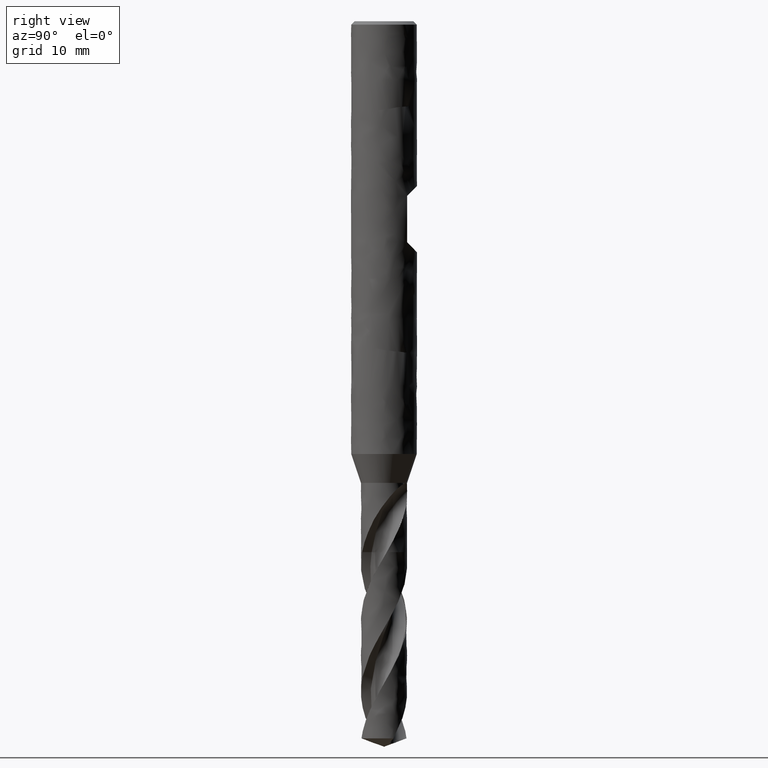
[diagram: clean part render]
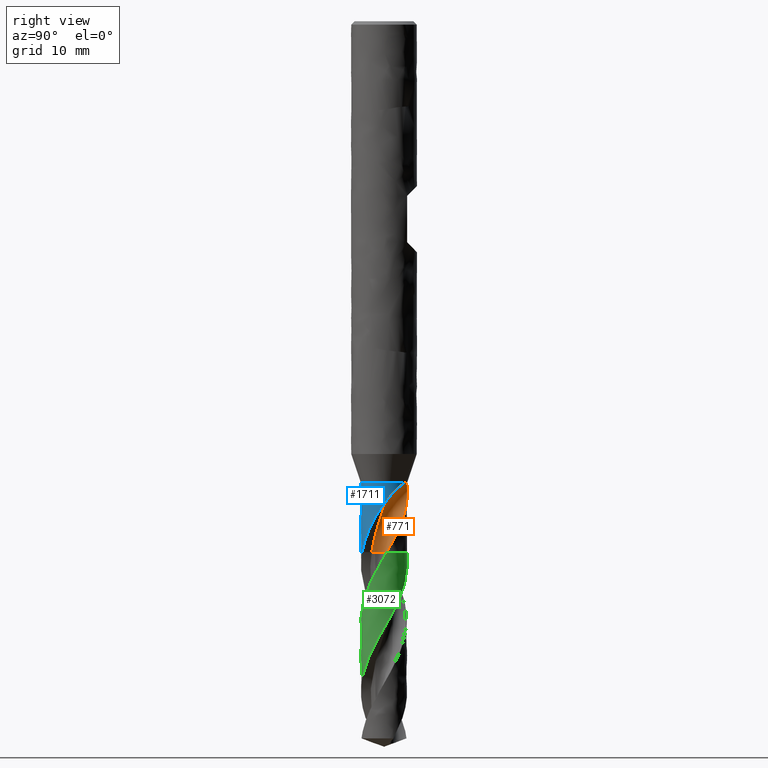
[diagram: same view with three faces highlighted in distinct colors, each labeled with its STEP entity id]
A machine part, right view with three faces highlighted in distinct colors.
Their STEP definitions:

[orange] entity #771 — the highlighted face is a freeform B-spline surface patch.
#195 = VERTEX_POINT('', #196);
#196 = CARTESIAN_POINT('', (0.864045133811133, 1.91400783873455, -42.));
#203 = EDGE_CURVE('', #204, #195, #206, .T.);
#204 = VERTEX_POINT('', #205);
#205 = CARTESIAN_POINT('', (0.722813576291031, 1.97896984860118, -41.98));
#206 = B_SPLINE_CURVE_WITH_KNOTS('', 3, (#207, #208, #209, #210, #211, #212, #213, #214, #215, #216), .UNSPECIFIED., .F., .U., (4, 3, 3, 4), (0., 0.0881396208913765, 0.14655030433623, 0.157114428138972), .UNSPECIFIED.);
#207 = CARTESIAN_POINT('', (0.722813576299619, 1.97896984859805, -41.98));
#208 = CARTESIAN_POINT('', (0.750404405804281, 1.96887427369636, -41.9800496909525));
#209 = CARTESIAN_POINT('', (0.777564282523738, 1.95738300211154, -41.9825461931863));
#210 = CARTESIAN_POINT('', (0.803830741102255, 1.94493931706285, -41.9868362783479));
#211 = CARTESIAN_POINT('', (0.821237689098298, 1.93669280838813, -41.9896793448802));
#212 = CARTESIAN_POINT('', (0.83832161795045, 1.92799829475506, -41.9933203244043));
#213 = CARTESIAN_POINT('', (0.855020471906068, 1.91895162431172, -41.9976093571186));
#214 = CARTESIAN_POINT('', (0.858040617368286, 1.91731544851425, -41.9983850691959));
#215 = CARTESIAN_POINT('', (0.861048920434352, 1.9156673570035, -41.9991822080975));
#216 = CARTESIAN_POINT('', (0.864045133811122, 1.91400783873456, -42.));
#218 = EDGE_CURVE('', #219, #204, #221, .T.);
#219 = VERTEX_POINT('', #220);
#220 = CARTESIAN_POINT('', (0.721136271945863, 1.9795816742502, -41.98));
#221 = LINE('', #222, #223);
#222 = CARTESIAN_POINT('', (0.721136271945863, 1.9795816742502, -41.98));
#223 = VECTOR('', #224, 0.00178540765404388);
#224 = DIRECTION('', (0.00167730434516777, -0.000611825649020847, 0.));
#226 = EDGE_CURVE('', #219, #227, #229, .T.);
#227 = VERTEX_POINT('', #228);
#228 = CARTESIAN_POINT('', (0.593214891550843, 2.01447166583259, -42.));
#229 = B_SPLINE_CURVE_WITH_KNOTS('', 3, (#230, #231, #232, #233, #234, #235, #236), .UNSPECIFIED., .F., .U., (4, 3, 4), (0., 0.0878009510418324, 0.134603453082699), .UNSPECIFIED.);
#230 = CARTESIAN_POINT('', (0.721136271941431, 1.97958167425182, -41.98));
#231 = CARTESIAN_POINT('', (0.693631342865468, 1.98958331164283, -41.9800495962315));
#232 = CARTESIAN_POINT('', (0.665423836561771, 1.9982766249651, -41.9825700610231));
#233 = CARTESIAN_POINT('', (0.637533563877114, 2.00511722989849, -41.9882176399275));
#234 = CARTESIAN_POINT('', (0.622666588875647, 2.00876363033671, -41.9912280950543));
#235 = CARTESIAN_POINT('', (0.60781558325175, 2.01190514273543, -41.9951400840576));
#236 = CARTESIAN_POINT('', (0.593214891550846, 2.01447166583259, -42.));
#608 = VERTEX_POINT('', #609);
#609 = CARTESIAN_POINT('', (0.556126910256113, -1.12758972511931, -48.3));
#615 = EDGE_CURVE('', #608, #616, #618, .T.);
#616 = VERTEX_POINT('', #617);
#617 = CARTESIAN_POINT('', (2.02664878262755, 0.550176982319562, -43.2346225348622));
#618 = B_SPLINE_CURVE_WITH_KNOTS('', 3, (#619, #620, #621, #622, #623, #624, #625, #626, #627, #628, #629, #630, #631, #632, #633, #634, #635), .UNSPECIFIED., .F., .U., (4, 1, 1, 1, 1, 1, 1, 1, 1, 1, 1, 1, 1, 1, 4), (17.75, 17.8583870967742, 18.2466129032258, 18.6348387096774, 19.023064516129, 19.4112903225806, 19.7995161290323, 20.1877419354839, 20.5759677419355, 20.9641935483871, 21.3524193548387, 21.7406451612903, 22.1288709677419, 22.5170967741936, 22.8153774651378), .UNSPECIFIED.);
#619 = CARTESIAN_POINT('', (0.556126910256113, -1.12758972511931, -48.3));
#620 = CARTESIAN_POINT('', (0.567345727047188, -1.12240556657259, -48.2638709677419));
#621 = CARTESIAN_POINT('', (0.61842465869541, -1.09789667359361, -48.0983333333333));
#622 = CARTESIAN_POINT('', (0.706621828589804, -1.0481382453941, -47.8033870967742));
#623 = CARTESIAN_POINT('', (0.815231089446162, -0.970396712026822, -47.4151612903226));
#624 = CARTESIAN_POINT('', (0.916635421108995, -0.882497024634898, -47.026935483871));
#625 = CARTESIAN_POINT('', (1.00296425888489, -0.779322485067304, -46.6387096774194));
#626 = CARTESIAN_POINT('', (1.07051011495178, -0.6634137166897, -46.2504838709677));
#627 = CARTESIAN_POINT('', (1.11679331438377, -0.537716355560253, -45.8622580645161));
#628 = CARTESIAN_POINT('', (1.14307846790871, -0.409469959020646, -45.4740322580645));
#629 = CARTESIAN_POINT('', (1.21314661255275, -0.29704825930208, -45.0858064516129));
#630 = CARTESIAN_POINT('', (1.31918576703887, -0.180037182633004, -44.6975806451613));
#631 = CARTESIAN_POINT('', (1.46405191380302, -0.0454577551452909, -44.3093548387097));
#632 = CARTESIAN_POINT('', (1.64366578165144, 0.121712562769068, -43.9211290322581));
#633 = CARTESIAN_POINT('', (1.8356789791346, 0.318773264205345, -43.5628849309756));
#634 = CARTESIAN_POINT('', (1.96816567126978, 0.475460011853656, -43.3340494318436));
#635 = CARTESIAN_POINT('', (2.02664878262755, 0.550176982319563, -43.2346225348622));
#771 = ADVANCED_FACE('', (#772), #1028, .T.);
#772 = FACE_OUTER_BOUND('', #773, .T.);
#773 = EDGE_LOOP('', (#774, #840, #876, #887, #978, #979, #980, #981, #1027));
#774 = ORIENTED_EDGE('', *, *, #775, .T.);
#775 = EDGE_CURVE('', #608, #776, #778, .T.);
#776 = VERTEX_POINT('', #777);
#777 = CARTESIAN_POINT('', (2.08549341092007, 0.246408670726007, -48.3));
#778 = B_SPLINE_CURVE_WITH_KNOTS('', 3, (#779, #780, #781, #782, #783, #784, #785, #786, #787, #788, #789, #790, #791, #792, #793, #794, #795, #796, #797, #798, #799, #800, #801, #802, #803, #804, #805, #806, #807, #808, #809, #810, #811, #812, #813, #814, #815, #816, #817, #818, #819, #820, #821, #822, #823, #824, #825, #826, #827, #828, #829, #830, #831, #832, #833, #834, #835, #836, #837, #838, #839), .UNSPECIFIED., .F., .U., (4, 3, 3, 3, 3, 3, 3, 3, 3, 3, 3, 3, 3, 3, 3, 3, 3, 3, 3, 3, 4), (0., 0.13221393521754, 0.26423610894369, 0.396071642208949, 0.527724457489775, 0.659197375737823, 0.790492185102751, 0.921609684937988, 1.05254970736411, 1.18331111755208, 1.20922921835682, 1.34144286074896, 1.4734647503101, 1.60530000617978, 1.73695254911299, 1.86842519846345, 1.99971974086683, 2.13083697421148, 2.26177672916909, 2.39253786944637, 2.40342313004446), .UNSPECIFIED.);
#779 = CARTESIAN_POINT('', (0.556126910256111, -1.12758972511931, -48.3));
#780 = CARTESIAN_POINT('', (0.551058379935698, -1.08381084300929, -48.3));
#781 = CARTESIAN_POINT('', (0.548286006554261, -1.03970519155441, -48.3));
#782 = CARTESIAN_POINT('', (0.547832635129783, -0.99563621184347, -48.3));
#783 = CARTESIAN_POINT('', (0.547379921269731, -0.951631149247312, -48.3));
#784 = CARTESIAN_POINT('', (0.549238228141942, -0.907542044937356, -48.3));
#785 = CARTESIAN_POINT('', (0.55339228715043, -0.863731152710823, -48.3));
#786 = CARTESIAN_POINT('', (0.557540473543235, -0.819982196179533, -48.3));
#787 = CARTESIAN_POINT('', (0.563989244777734, -0.77639109883157, -48.3));
#788 = CARTESIAN_POINT('', (0.572685764558104, -0.733315012755468, -48.3));
#789 = CARTESIAN_POINT('', (0.581370231362115, -0.69029862815309, -48.3));
#790 = CARTESIAN_POINT('', (0.592319871981882, -0.647678588360261, -48.3));
#791 = CARTESIAN_POINT('', (0.605445221439055, -0.605803124069619, -48.3));
#792 = CARTESIAN_POINT('', (0.618552635758142, -0.563984880520942, -48.3));
#793 = CARTESIAN_POINT('', (0.633865425813752, -0.522795514594197, -48.3));
#794 = CARTESIAN_POINT('', (0.651258818136696, -0.482570650304446, -48.3));
#795 = CARTESIAN_POINT('', (0.668628647297572, -0.442400279409593, -48.3));
#796 = CARTESIAN_POINT('', (0.688120512084066, -0.403082907132266, -48.3));
#797 = CARTESIAN_POINT('', (0.709576015765095, -0.364938038215183, -48.3));
#798 = CARTESIAN_POINT('', (0.731002544460095, -0.326844682749398, -48.3));
#799 = CARTESIAN_POINT('', (0.754445319103286, -0.289817681146443, -48.3));
#800 = CARTESIAN_POINT('', (0.779714349834722, -0.254157115412651, -48.3));
#801 = CARTESIAN_POINT('', (0.804949177030317, -0.218544818939805, -48.3));
#802 = CARTESIAN_POINT('', (0.832073338609477, -0.184199242209075, -48.3));
#803 = CARTESIAN_POINT('', (0.860867602739123, -0.151397984353718, -48.3));
#804 = CARTESIAN_POINT('', (0.889622589282995, -0.118641469931049, -48.3));
#805 = CARTESIAN_POINT('', (0.920120424878073, -0.0873369821821816, -48.3));
#806 = CARTESIAN_POINT('', (0.952115280548496, -0.0577368521336566, -48.3));
#807 = CARTESIAN_POINT('', (0.958456951943038, -0.0518698371379619, -48.3));
#808 = CARTESIAN_POINT('', (0.964859304351878, -0.046067739663427, -48.3));
#809 = CARTESIAN_POINT('', (0.971320306390285, -0.0403324006415595, -48.3));
#810 = CARTESIAN_POINT('', (1.00427922646844, -0.0110752390868731, -48.3));
#811 = CARTESIAN_POINT('', (1.03882256718141, 0.0164882051525758, -48.3));
#812 = CARTESIAN_POINT('', (1.07466568442013, 0.0421308037253902, -48.3));
#813 = CARTESIAN_POINT('', (1.11045681746813, 0.0677362121808962, -48.3));
#814 = CARTESIAN_POINT('', (1.14764204336895, 0.0914965356064935, -48.3));
#815 = CARTESIAN_POINT('', (1.18591583467709, 0.113216550476045, -48.3));
#816 = CARTESIAN_POINT('', (1.22413551996553, 0.13490586069073, -48.3));
#817 = CARTESIAN_POINT('', (1.26354513961639, 0.154619918654095, -48.3));
#818 = CARTESIAN_POINT('', (1.30382180272504, 0.17219720314198, -48.3));
#819 = CARTESIAN_POINT('', (1.34404264565616, 0.189750126943927, -48.3));
#820 = CARTESIAN_POINT('', (1.38523774049331, 0.205220050276381, -48.3));
#821 = CARTESIAN_POINT('', (1.42707050056864, 0.218480575325064, -48.3));
#822 = CARTESIAN_POINT('', (1.46884609923319, 0.231722980834943, -48.3));
#823 = CARTESIAN_POINT('', (1.51137115946979, 0.242798030029448, -48.3));
#824 = CARTESIAN_POINT('', (1.55429917501708, 0.251615480264139, -48.3));
#825 = CARTESIAN_POINT('', (1.59716903567185, 0.260420985435351, -48.3));
#826 = CARTESIAN_POINT('', (1.64055695877341, 0.266998888652003, -48.3));
#827 = CARTESIAN_POINT('', (1.68411036249484, 0.271295736119403, -48.3));
#828 = CARTESIAN_POINT('', (1.72760494874466, 0.27558678083243, -48.3));
#829 = CARTESIAN_POINT('', (1.77138214442973, 0.27761454302465, -48.3));
#830 = CARTESIAN_POINT('', (1.81508716264177, 0.277362588946308, -48.3));
#831 = CARTESIAN_POINT('', (1.8587330223745, 0.277110975909356, -48.3));
#832 = CARTESIAN_POINT('', (1.90242456767089, 0.274585152296672, -48.3));
#833 = CARTESIAN_POINT('', (1.94580866177188, 0.269805533068592, -48.3));
#834 = CARTESIAN_POINT('', (1.98913357570942, 0.265032433710362, -48.3));
#835 = CARTESIAN_POINT('', (2.03226836372527, 0.257998866746774, -48.3));
#836 = CARTESIAN_POINT('', (2.07486533763539, 0.248761526281056, -48.3));
#837 = CARTESIAN_POINT('', (2.07841133884583, 0.247992560378882, -48.3));
#838 = CARTESIAN_POINT('', (2.08195409583425, 0.247208259662032, -48.3));
#839 = CARTESIAN_POINT('', (2.08549341057053, 0.246408669178801, -48.3));
#840 = ORIENTED_EDGE('', *, *, #841, .F.);
#841 = EDGE_CURVE('', #842, #776, #844, .T.);
#842 = VERTEX_POINT('', #843);
#843 = CARTESIAN_POINT('', (1.58851665766254, 1.3735409816706, -46.1026083026161));
#844 = B_SPLINE_CURVE_WITH_KNOTS('', 3, (#845, #846, #847, #848, #849, #850, #851, #852, #853, #854, #855, #856, #857, #858, #859, #860, #861, #862, #863, #864, #865, #866, #867, #868, #869, #870, #871, #872, #873, #874, #875), .UNSPECIFIED., .F., .U., (4, 3, 3, 3, 3, 3, 3, 3, 3, 3, 4), (0., 0.197020074080752, 0.492447114262048, 0.787846746858852, 1.08318671605039, 1.2801296973638, 1.47707240520879, 1.67399144802539, 1.96923136988726, 2.41172800126813, 2.52809866126606), .UNSPECIFIED.);
#845 = CARTESIAN_POINT('', (1.58851665766254, 1.3735409816706, -46.1026083026161));
#846 = CARTESIAN_POINT('', (1.60900028755248, 1.34985141745389, -46.1603336472082));
#847 = CARTESIAN_POINT('', (1.62905290531876, 1.32558872609442, -46.217981351933));
#848 = CARTESIAN_POINT('', (1.64862924182809, 1.30077731491192, -46.2755500142288));
#849 = CARTESIAN_POINT('', (1.67798350524276, 1.26357317821383, -46.3618728906597));
#850 = CARTESIAN_POINT('', (1.70627412362569, 1.22512510888603, -46.4480376265066));
#851 = CARTESIAN_POINT('', (1.73336523400838, 1.18551464163504, -46.5340291504247));
#852 = CARTESIAN_POINT('', (1.76045383107376, 1.14590784915678, -46.620012696671));
#853 = CARTESIAN_POINT('', (1.78635496033678, 1.1051206661048, -46.7058435649217));
#854 = CARTESIAN_POINT('', (1.81092950219745, 1.06326588305602, -46.7915169525912));
#855 = CARTESIAN_POINT('', (1.83549908060967, 1.02141955363618, -46.8771730363594));
#856 = CARTESIAN_POINT('', (1.85874700766502, 0.97849776833109, -46.9627002249396));
#857 = CARTESIAN_POINT('', (1.88054317279829, 0.934642913225972, -47.0481017648846));
#858 = CARTESIAN_POINT('', (1.8950776151032, 0.905398967907252, -47.1050504871708));
#859 = CARTESIAN_POINT('', (1.90897003958032, 0.875733496832032, -47.161951815285));
#860 = CARTESIAN_POINT('', (1.92217882080112, 0.845711878161606, -47.2188187286181));
#861 = CARTESIAN_POINT('', (1.93538758368065, 0.815690301178196, -47.2756855629876));
#862 = CARTESIAN_POINT('', (1.9479140634062, 0.7853083293546, -47.3325258121565));
#863 = CARTESIAN_POINT('', (1.95971504264421, 0.754663469126473, -47.3893697457221));
#864 = CARTESIAN_POINT('', (1.97151460385303, 0.724022291245843, -47.4462068488074));
#865 = CARTESIAN_POINT('', (1.98258685658696, 0.693126517217477, -47.5030628794218));
#866 = CARTESIAN_POINT('', (1.9929228608244, 0.66201092951968, -47.5599272349741));
#867 = CARTESIAN_POINT('', (2.00841959003746, 0.615359455141247, -47.6451837325167));
#868 = CARTESIAN_POINT('', (2.02226682190873, 0.568199590884774, -47.7304792789873));
#869 = CARTESIAN_POINT('', (2.03444672691324, 0.52060207006119, -47.8157512261725));
#870 = CARTESIAN_POINT('', (2.05270159875118, 0.44926435091503, -47.9435542317511));
#871 = CARTESIAN_POINT('', (2.06721348963778, 0.376900298708733, -48.0713776247991));
#872 = CARTESIAN_POINT('', (2.07787696243854, 0.304018632598729, -48.1991683593872));
#873 = CARTESIAN_POINT('', (2.08068131230177, 0.284851735077943, -48.2327756030836));
#874 = CARTESIAN_POINT('', (2.08322078511933, 0.265643164865221, -48.2663912128339));
#875 = CARTESIAN_POINT('', (2.08549341092007, 0.246408670726007, -48.3));
#876 = ORIENTED_EDGE('', *, *, #877, .T.);
#877 = EDGE_CURVE('', #842, #878, #880, .T.);
#878 = VERTEX_POINT('', #879);
#879 = CARTESIAN_POINT('', (1.17143250964958, 1.7429130429646, -45.1242170224339));
#880 = B_SPLINE_CURVE_WITH_KNOTS('', 3, (#881, #882, #883, #884, #885, #886), .UNSPECIFIED., .F., .U., (4, 1, 1, 4), (19.9473916973839, 20.1877419354839, 20.5759677419355, 20.9257829775661), .UNSPECIFIED.);
#881 = CARTESIAN_POINT('', (1.58851665766254, 1.3735409816706, -46.1026083026161));
#882 = CARTESIAN_POINT('', (1.55370323535106, 1.40398821527374, -46.0224915565828));
#883 = CARTESIAN_POINT('', (1.45883494480509, 1.47878240850095, -45.8129662083989));
#884 = CARTESIAN_POINT('', (1.30073754531762, 1.57464758199835, -45.4868357816715));
#885 = CARTESIAN_POINT('', (1.21147889431098, 1.68333052923856, -45.2408221009774));
#886 = CARTESIAN_POINT('', (1.17143250964958, 1.7429130429646, -45.1242170224339));
#887 = ORIENTED_EDGE('', *, *, #888, .T.);
#888 = EDGE_CURVE('', #878, #227, #889, .T.);
#889 = B_SPLINE_CURVE_WITH_KNOTS('', 3, (#890, #891, #892, #893, #894, #895, #896, #897, #898, #899, #900, #901, #902, #903, #904, #905, #906, #907, #908, #909, #910, #911, #912, #913, #914, #915, #916, #917, #918, #919, #920, #921, #922, #923, #924, #925, #926, #927, #928, #929, #930, #931, #932, #933, #934, #935, #936, #937, #938, #939, #940, #941, #942, #943, #944, #945, #946, #947, #948, #949, #950, #951, #952, #953, #954, #955, #956, #957, #958, #959, #960, #961, #962, #963, #964, #965, #966, #967, #968, #969, #970, #971, #972, #973, #974, #975, #976, #977), .UNSPECIFIED., .F., .U., (4, 3, 3, 3, 3, 3, 3, 3, 3, 3, 3, 3, 3, 3, 3, 3, 3, 3, 3, 3, 3, 3, 3, 3, 3, 3, 3, 3, 3, 4), (0., 0.131329015450739, 0.328235767124203, 0.52498632031234, 0.721558249487562, 0.917953668431398, 1.11417691027165, 1.31022659134217, 1.5061270301777, 1.70190546546189, 1.89761367435583, 2.09331740471476, 2.28912007235003, 2.42001970183956, 2.55104167735566, 2.68225447785873, 2.81375695656608, 2.87222225946047, 2.91119753431028, 2.99921762331742, 3.0874764193496, 3.17601365135534, 3.26483834928556, 3.32383592607838, 3.38286952818586, 3.44190730165871, 3.50091591771368, 3.55986704842897, 3.61874168749781, 3.68743265222417), .UNSPECIFIED.);
#890 = CARTESIAN_POINT('', (1.17143250964958, 1.7429130429646, -45.1242170224339));
#891 = CARTESIAN_POINT('', (1.15153134468082, 1.75628885176837, -45.0875919056046));
#892 = CARTESIAN_POINT('', (1.13122403988719, 1.76944194707991, -45.0511032435581));
#893 = CARTESIAN_POINT('', (1.11056271560855, 1.78231603670622, -45.0147200701619));
#894 = CARTESIAN_POINT('', (1.07958438050859, 1.80161866499723, -44.9601693491013));
#895 = CARTESIAN_POINT('', (1.04780235713066, 1.82029631375677, -44.9058450220963));
#896 = CARTESIAN_POINT('', (1.01542182737691, 1.83818348172497, -44.8516271247959));
#897 = CARTESIAN_POINT('', (0.983066983840923, 1.85605646049692, -44.7974522364495));
#898 = CARTESIAN_POINT('', (0.950107202399082, 1.87314402912876, -44.7433707983378));
#899 = CARTESIAN_POINT('', (0.916779766012478, 1.88931597691601, -44.6892510432901));
#900 = CARTESIAN_POINT('', (0.883482586620485, 1.90547324266978, -44.6351804219687));
#901 = CARTESIAN_POINT('', (0.849813794462639, 1.92071874090488, -44.5810568063512));
#902 = CARTESIAN_POINT('', (0.816034701606613, 1.93496443527363, -44.5267482015085));
#903 = CARTESIAN_POINT('', (0.782285940423686, 1.94919733783218, -44.4724883626542));
#904 = CARTESIAN_POINT('', (0.74841864351225, 1.96243613265467, -44.418030803196));
#905 = CARTESIAN_POINT('', (0.714697973326569, 1.97464093113772, -44.3632617991395));
#906 = CARTESIAN_POINT('', (0.68100686557852, 1.98683502984547, -44.3085408102991));
#907 = CARTESIAN_POINT('', (0.647449973195208, 1.9980013069212, -44.2534954291715));
#908 = CARTESIAN_POINT('', (0.614314764873857, 2.00813778652215, -44.1980203613026));
#909 = CARTESIAN_POINT('', (0.58120886486587, 2.0182653003391, -44.1425943615023));
#910 = CARTESIAN_POINT('', (0.548513722170591, 2.02736810991886, -44.0867201475354));
#911 = CARTESIAN_POINT('', (0.516531119014513, 2.03548412007794, -44.0303122395811));
#912 = CARTESIAN_POINT('', (0.484572862519698, 2.04359395194849, -43.9739472719786));
#913 = CARTESIAN_POINT('', (0.453311209388773, 2.05072231222038, -43.917026434594));
#914 = CARTESIAN_POINT('', (0.423072618240329, 2.05694179783855, -43.8594846696923));
#915 = CARTESIAN_POINT('', (0.392852859186033, 2.063157410064, -43.8019787408496));
#916 = CARTESIAN_POINT('', (0.363639876924424, 2.06846849470192, -43.74382050321));
#917 = CARTESIAN_POINT('', (0.335791635327752, 2.07297949281799, -43.6849738732243));
#918 = CARTESIAN_POINT('', (0.307953382990007, 2.0774888728237, -43.6261483517249));
#919 = CARTESIAN_POINT('', (0.281456979351602, 2.0812024683295, -43.5665930859296));
#920 = CARTESIAN_POINT('', (0.256709160678005, 2.08425056239023, -43.5063104236258));
#921 = CARTESIAN_POINT('', (0.231961908326961, 2.08729858669919, -43.4460291408145));
#922 = CARTESIAN_POINT('', (0.208939472493387, 2.08968434949716, -43.3849596546758));
#923 = CARTESIAN_POINT('', (0.188133672308556, 2.0915558135856, -43.3231602508815));
#924 = CARTESIAN_POINT('', (0.167317353830596, 2.09342822378559, -43.2613296046338));
#925 = CARTESIAN_POINT('', (0.14868665729245, 2.09478964537231, -43.1986804929324));
#926 = CARTESIAN_POINT('', (0.132863441102062, 2.09579276313726, -43.1353679867864));
#927 = CARTESIAN_POINT('', (0.122285172880953, 2.09646337577678, -43.0930417830801));
#928 = CARTESIAN_POINT('', (0.11295297188498, 2.09697482089381, -43.0503750141928));
#929 = CARTESIAN_POINT('', (0.105103221367981, 2.09736818724278, -43.0074555118682));
#930 = CARTESIAN_POINT('', (0.09724613404041, 2.09776192125368, -42.9644958946052));
#931 = CARTESIAN_POINT('', (0.0908636640080462, 2.09803839772199, -42.9212291226679));
#932 = CARTESIAN_POINT('', (0.0862497954827468, 2.09822805547424, -42.8777999411157));
#933 = CARTESIAN_POINT('', (0.0816292071579807, 2.09841798945066, -42.8343075077848));
#934 = CARTESIAN_POINT('', (0.0787736236616184, 2.09852215384442, -42.7905752693677));
#935 = CARTESIAN_POINT('', (0.0780572086415792, 2.09854880147665, -42.7468435450951));
#936 = CARTESIAN_POINT('', (0.0773392119937131, 2.09857550793881, -42.7030152743933));
#937 = CARTESIAN_POINT('', (0.0787696688016285, 2.09852607724468, -42.6590743199777));
#938 = CARTESIAN_POINT('', (0.0828109758432458, 2.09836658910685, -42.6154271442837));
#939 = CARTESIAN_POINT('', (0.0846077194681566, 2.09829568152869, -42.5960218420223));
#940 = CARTESIAN_POINT('', (0.0869230549119642, 2.09820225120147, -42.5766562521121));
#941 = CARTESIAN_POINT('', (0.0898021582056481, 2.09807901957527, -42.5573820556416));
#942 = CARTESIAN_POINT('', (0.0917214819179532, 2.09799686851706, -42.5445331167367));
#943 = CARTESIAN_POINT('', (0.0938922623603598, 2.09790137746362, -42.5317189740304));
#944 = CARTESIAN_POINT('', (0.0963282391232028, 2.09778952002994, -42.5189581241992));
#945 = CARTESIAN_POINT('', (0.101829544561356, 2.09753690599947, -42.4901395682741));
#946 = CARTESIAN_POINT('', (0.108695211736345, 2.09720191393546, -42.4615382949671));
#947 = CARTESIAN_POINT('', (0.11707958296755, 2.09673373875944, -42.4334256559582));
#948 = CARTESIAN_POINT('', (0.125486692284299, 2.09626429391074, -42.4052367765763));
#949 = CARTESIAN_POINT('', (0.135449707216449, 2.09565968382111, -42.3774538117624));
#950 = CARTESIAN_POINT('', (0.147088681336955, 2.09484245704124, -42.3504467903022));
#951 = CARTESIAN_POINT('', (0.158764373713729, 2.09402265210096, -42.3233545679708));
#952 = CARTESIAN_POINT('', (0.172179102174249, 2.09298510051245, -42.2969361961158));
#953 = CARTESIAN_POINT('', (0.18735886842544, 2.09162536187109, -42.271663519351));
#954 = CARTESIAN_POINT('', (0.202587920897127, 2.09026120838055, -42.2463087863346));
#955 = CARTESIAN_POINT('', (0.219678086042879, 2.0885640555328, -42.2219819049096));
#956 = CARTESIAN_POINT('', (0.238483802527351, 2.08641450242566, -42.199214123085));
#957 = CARTESIAN_POINT('', (0.250974604390906, 2.08498676411116, -42.1840917079471));
#958 = CARTESIAN_POINT('', (0.264259250271184, 2.08335452123948, -42.1696063672838));
#959 = CARTESIAN_POINT('', (0.278242054310572, 2.08148537328828, -42.1559047803457));
#960 = CARTESIAN_POINT('', (0.292233396580558, 2.07961508399116, -42.1421948268947));
#961 = CARTESIAN_POINT('', (0.306964617855969, 2.07750176155894, -42.1292302004114));
#962 = CARTESIAN_POINT('', (0.322299962208184, 2.07511993252453, -42.1171317472769));
#963 = CARTESIAN_POINT('', (0.337636390169092, 2.07273793518802, -42.1050324392552));
#964 = CARTESIAN_POINT('', (0.353622289217629, 2.07008001889432, -42.0937635296146));
#965 = CARTESIAN_POINT('', (0.370093820243297, 2.06713099832063, -42.0834066414796));
#966 = CARTESIAN_POINT('', (0.386557216353217, 2.06418343420135, -42.0730548683769));
#967 = CARTESIAN_POINT('', (0.403552737225843, 2.06093641948619, -42.0635838366765));
#968 = CARTESIAN_POINT('', (0.420905927576344, 2.05738625448194, -42.0550308333922));
#969 = CARTESIAN_POINT('', (0.43824221269997, 2.05383954799705, -42.0464861623198));
#970 = CARTESIAN_POINT('', (0.455981364833001, 2.04998082833755, -42.0388339637557));
#971 = CARTESIAN_POINT('', (0.473955303636378, 2.04581679779862, -42.0320711473249));
#972 = CARTESIAN_POINT('', (0.491905920475353, 2.04165817026973, -42.0253171059416));
#973 = CARTESIAN_POINT('', (0.510133257781588, 2.03718524327581, -42.0194330050642));
#974 = CARTESIAN_POINT('', (0.528487493638463, 2.03241259813744, -42.0143852543447));
#975 = CARTESIAN_POINT('', (0.549901980211357, 2.02684419714109, -42.0084958786798));
#976 = CARTESIAN_POINT('', (0.571543748375582, 2.02085331173337, -42.0037293725524));
#977 = CARTESIAN_POINT('', (0.593214891550843, 2.01447166583259, -42.));
#978 = ORIENTED_EDGE('', *, *, #226, .F.);
#979 = ORIENTED_EDGE('', *, *, #218, .T.);
#980 = ORIENTED_EDGE('', *, *, #203, .T.);
#981 = ORIENTED_EDGE('', *, *, #982, .F.);
#982 = EDGE_CURVE('', #616, #195, #983, .T.);
#983 = B_SPLINE_CURVE_WITH_KNOTS('', 3, (#984, #985, #986, #987, #988, #989, #990, #991, #992, #993, #994, #995, #996, #997, #998, #999, #1000, #1001, #1002, #1003, #1004, #1005, #1006, #1007, #1008, #1009, #1010, #1011, #1012, #1013, #1014, #1015, #1016, #1017, #1018, #1019, #1020, #1021, #1022, #1023, #1024, #1025, #1026), .UNSPECIFIED., .F., .U., (4, 3, 3, 3, 3, 3, 3, 3, 3, 3, 3, 3, 3, 3, 4), (0., 0.199375078037429, 0.398900874019301, 0.598550882905467, 0.798299058307535, 0.998108113251841, 1.19794941761203, 1.39778853267809, 1.59757823524363, 1.73008181625885, 1.86251849738647, 1.99485612344929, 2.12704923017909, 2.21487958074265, 2.26732508271062), .UNSPECIFIED.);
#984 = CARTESIAN_POINT('', (2.02664878262755, 0.550176982319562, -43.2346225348622));
#985 = CARTESIAN_POINT('', (2.01541803670317, 0.591546901976506, -43.1838375605047));
#986 = CARTESIAN_POINT('', (2.00263927563071, 0.633604606966067, -43.1339161358273));
#987 = CARTESIAN_POINT('', (1.98817244136824, 0.676143729826623, -43.0849483172153));
#988 = CARTESIAN_POINT('', (1.97369467087671, 0.718715010212677, -43.0359434812939));
#989 = CARTESIAN_POINT('', (1.95751353202819, 0.761804914872326, -42.9878474378582));
#990 = CARTESIAN_POINT('', (1.93950518919256, 0.805182973674386, -42.9407577649067));
#991 = CARTESIAN_POINT('', (1.92148563543278, 0.848588037078231, -42.893638776723));
#992 = CARTESIAN_POINT('', (1.90161831960046, 0.892325297746152, -42.8474797006639));
#993 = CARTESIAN_POINT('', (1.87979457873621, 0.93614760681954, -42.8023994116629));
#994 = CARTESIAN_POINT('', (1.8579601072909, 0.979991463016438, -42.7572969569984));
#995 = CARTESIAN_POINT('', (1.83414150091983, 1.02397143523059, -42.7132247963892));
#996 = CARTESIAN_POINT('', (1.80825103959655, 1.06781467390086, -42.670321256656));
#997 = CARTESIAN_POINT('', (1.78235268734045, 1.11167127517779, -42.6274046407189));
#998 = CARTESIAN_POINT('', (1.75434813436788, 1.15544671179121, -42.5856005227466));
#999 = CARTESIAN_POINT('', (1.72416977184868, 1.19884886363681, -42.5450853194339));
#1000 = CARTESIAN_POINT('', (1.69398653850637, 1.24225802064063, -42.5045635769199));
#1001 = CARTESIAN_POINT('', (1.66158371518004, 1.28535820527008, -42.4652703043852));
#1002 = CARTESIAN_POINT('', (1.62691555894323, 1.32783499128034, -42.4274386285495));
#1003 = CARTESIAN_POINT('', (1.59224778250172, 1.37031131195047, -42.3896073671661));
#1004 = CARTESIAN_POINT('', (1.5552537035025, 1.41223831636632, -42.3531704156336));
#1005 = CARTESIAN_POINT('', (1.51591630644644, 1.45327139648787, -42.3184407106605));
#1006 = CARTESIAN_POINT('', (1.47658863601047, 1.49429433071235, -42.283719593003));
#1007 = CARTESIAN_POINT('', (1.43483493504125, 1.53451003339315, -42.2506296034303));
#1008 = CARTESIAN_POINT('', (1.39068122129481, 1.57353288517844, -42.2196010777381));
#1009 = CARTESIAN_POINT('', (1.36139780422478, 1.5994134362608, -42.1990224857735));
#1010 = CARTESIAN_POINT('', (1.33101924908361, 1.62480481185289, -42.1793237426499));
#1011 = CARTESIAN_POINT('', (1.29957001780911, 1.6495810888864, -42.1606721519543));
#1012 = CARTESIAN_POINT('', (1.26813666497368, 1.67434485659649, -42.1420299782821));
#1013 = CARTESIAN_POINT('', (1.23559047041345, 1.69852773444682, -42.1244078774728));
#1014 = CARTESIAN_POINT('', (1.20197791644856, 1.72198986302765, -42.1080202223838));
#1015 = CARTESIAN_POINT('', (1.16839050275208, 1.74543444327786, -42.0916448243239));
#1016 = CARTESIAN_POINT('', (1.13368173124522, 1.7681980393321, -42.0764739699332));
#1017 = CARTESIAN_POINT('', (1.09793437802248, 1.79012292917453, -42.0627866653587));
#1018 = CARTESIAN_POINT('', (1.06222606270452, 1.81202387593629, -42.0491143080081));
#1019 = CARTESIAN_POINT('', (1.02540512263997, 1.83313331996744, -42.0368926177984));
#1020 = CARTESIAN_POINT('', (0.987617268327435, 1.85327065786449, -42.0264890464739));
#1021 = CARTESIAN_POINT('', (0.962510660476099, 1.8666500956481, -42.0195768152755));
#1022 = CARTESIAN_POINT('', (0.93694236166119, 1.8796194362426, -42.0134586709274));
#1023 = CARTESIAN_POINT('', (0.910981197665729, 1.89211872182998, -42.0082706195444));
#1024 = CARTESIAN_POINT('', (0.895479195582411, 1.89958232982728, -42.0051727159465));
#1025 = CARTESIAN_POINT('', (0.879827181860365, 1.90688331105888, -42.0024047004804));
#1026 = CARTESIAN_POINT('', (0.864045133811132, 1.91400783873455, -42.));
#1027 = ORIENTED_EDGE('', *, *, #615, .F.);
#1028 = (
   BOUNDED_SURFACE ()
   B_SPLINE_SURFACE (3, 2, ((#1029, #1030, #1031, #1032, #1033), (#1034, #1035, #1036, #1037, #1038), (#1039, #1040, #1041, #1042, #1043), (#1044, #1045, #1046, #1047, #1048), (#1049, #1050, #1051, #1052, #1053), (#1054, #1055, #1056, #1057, #1058), (#1059, #1060, #1061, #1062, #1063), (#1064, #1065, #1066, #1067, #1068), (#1069, #1070, #1071, #1072, #1073), (#1074, #1075, #1076, #1077, #1078), (#1079, #1080, #1081, #1082, #1083), (#1084, #1085, #1086, #1087, #1088), (#1089, #1090, #1091, #1092, #1093), (#1094, #1095, #1096, #1097, #1098), (#1099, #1100, #1101, #1102, #1103), (#1104, #1105, #1106, #1107, #1108), (#1109, #1110, #1111, #1112, #1113), (#1114, #1115, #1116, #1117, #1118), (#1119, #1120, #1121, #1122, #1123)), .UNSPECIFIED., .F., .F., .U.)
   B_SPLINE_SURFACE_WITH_KNOTS ((4, 1, 1, 1, 1, 1, 1, 1, 1, 1, 1, 1, 1, 1, 1, 1, 4), (3, 2, 3), (17.75, 17.8583870967742, 18.2466129032258, 18.6348387096774, 19.023064516129, 19.4112903225806, 19.7995161290323, 20.1877419354839, 20.5759677419355, 20.9641935483871, 21.3524193548387, 21.7406451612903, 22.1288709677419, 22.5170967741936, 22.9053225806452, 23.2935483870968, 24.07), (0., 0.5, 1.), .UNSPECIFIED.)
   GEOMETRIC_REPRESENTATION_ITEM ()
   RATIONAL_B_SPLINE_SURFACE (((1., 0.887010833178222, 1., 0.887010833178222, 1.), (1., 0.887010833178222, 1., 0.887010833178222, 1.), (1., 0.887010833178222, 1., 0.887010833178222, 1.), (1., 0.887010833178221, 1., 0.887010833178221, 1.), (1., 0.887010833178222, 1., 0.887010833178222, 1.), (1., 0.887010833178222, 1., 0.887010833178222, 1.), (1., 0.887010833178222, 1., 0.887010833178222, 1.), (1., 0.887010833178222, 1., 0.887010833178222, 1.), (1., 0.887010833178221, 1., 0.887010833178221, 1.), (1., 0.887010833178222, 1., 0.887010833178222, 1.), (1., 0.887010833178222, 1., 0.887010833178222, 1.), (1., 0.887010833178222, 1., 0.887010833178222, 1.), (1., 0.887010833178222, 1., 0.887010833178222, 1.), (1., 0.887010833178222, 1., 0.887010833178222, 1.), (1., 0.887010833178222, 1., 0.887010833178222, 1.), (1., 0.887010833178222, 1., 0.887010833178222, 1.), (1., 0.887010833178222, 1., 0.887010833178222, 1.), (1., 0.887010833178221, 1., 0.887010833178221, 1.), (1., 0.887010833178222, 1., 0.887010833178222, 1.)))
   REPRESENTATION_ITEM ('')
   SURFACE ()
);
#1029 = CARTESIAN_POINT('', (2.09975205545582, 0.243100244809427, -48.3));
#1030 = CARTESIAN_POINT('', (1.46165451713228, 0.395068784107536, -48.3));
#1031 = CARTESIAN_POINT('', (0.971171465422633, -0.0404645456578801, -48.3));
#1032 = CARTESIAN_POINT('', (0.480688413712985, -0.475997875423296, -48.3));
#1033 = CARTESIAN_POINT('', (0.556126910256111, -1.12758972511931, -48.3));
#1034 = CARTESIAN_POINT('', (2.09788588158038, 0.263794201482264, -48.2638709677419));
#1035 = CARTESIAN_POINT('', (1.45813617040866, 0.409530234008358, -48.2638709677419));
#1036 = CARTESIAN_POINT('', (0.971810841947867, -0.0309312955469829, -48.2638709677419));
#1037 = CARTESIAN_POINT('', (0.485485513487069, -0.471392825102324, -48.2638709677419));
#1038 = CARTESIAN_POINT('', (0.567345727047187, -1.12240556657259, -48.2638709677419));
#1039 = CARTESIAN_POINT('', (2.08795540625146, 0.358525091643919, -48.0983333333333));
#1040 = CARTESIAN_POINT('', (1.44104718222077, 0.475583247055584, -48.0983333333333));
#1041 = CARTESIAN_POINT('', (0.974107441128903, 0.0128088525003344, -48.0983333333333));
#1042 = CARTESIAN_POINT('', (0.507167700037032, -0.449965542054915, -48.0983333333333));
#1043 = CARTESIAN_POINT('', (0.61842465869541, -1.09789667359361, -48.0983333333333));
#1044 = CARTESIAN_POINT('', (2.05902959302166, 0.526300942752022, -47.8033870967742));
#1045 = CARTESIAN_POINT('', (1.40274933300951, 0.591364946453425, -47.8033870967742));
#1046 = CARTESIAN_POINT('', (0.973025128582574, 0.0910908092157455, -47.8033870967742));
#1047 = CARTESIAN_POINT('', (0.543300924155638, -0.409183328021934, -47.8033870967742));
#1048 = CARTESIAN_POINT('', (0.706621828589804, -1.0481382453941, -47.8033870967742));
#1049 = CARTESIAN_POINT('', (1.99733604068204, 0.742215447959867, -47.4151612903226));
#1050 = CARTESIAN_POINT('', (1.33612974361918, 0.737770067397335, -47.4151612903226));
#1051 = CARTESIAN_POINT('', (0.960518834632436, 0.19359181192026, -47.4151612903226));
#1052 = CARTESIAN_POINT('', (0.584907925645692, -0.350586443556815, -47.4151612903226));
#1053 = CARTESIAN_POINT('', (0.815231089446162, -0.970396712026823, -47.4151612903226));
#1054 = CARTESIAN_POINT('', (1.91548556007674, 0.952464590815816, -47.026935483871));
#1055 = CARTESIAN_POINT('', (1.25583236062357, 0.878022509215802, -47.026935483871));
#1056 = CARTESIAN_POINT('', (0.938450212577442, 0.294968018483279, -47.026935483871));
#1057 = CARTESIAN_POINT('', (0.621068064531312, -0.288086472249243, -47.026935483871));
#1058 = CARTESIAN_POINT('', (0.916635421108994, -0.882497024634898, -47.026935483871));
#1059 = CARTESIAN_POINT('', (1.80092730504465, 1.14747907370332, -46.6387096774194));
#1060 = CARTESIAN_POINT('', (1.15398185354702, 1.0040113333775, -46.6387096774194));
#1061 = CARTESIAN_POINT('', (0.900431079740908, 0.391774929012342, -46.6387096774194));
#1062 = CARTESIAN_POINT('', (0.646880305934792, -0.22046147535282, -46.6387096774194));
#1063 = CARTESIAN_POINT('', (1.00296425888489, -0.779322485067305, -46.6387096774194));
#1064 = CARTESIAN_POINT('', (1.65558807137916, 1.31995240755054, -46.2504838709677));
#1065 = CARTESIAN_POINT('', (1.03271863231151, 1.11076515288758, -46.2504838709677));
#1066 = CARTESIAN_POINT('', (0.846811566435476, 0.48055549849054, -46.2504838709677));
#1067 = CARTESIAN_POINT('', (0.660904500559443, -0.1496541559065, -46.2504838709677));
#1068 = CARTESIAN_POINT('', (1.07051011495178, -0.6634137166897, -46.2504838709677));
#1069 = CARTESIAN_POINT('', (1.48273002980603, 1.46429319819909, -45.8622580645161));
#1070 = CARTESIAN_POINT('', (0.894947049241213, 1.19466927740781, -45.8622580645161));
#1071 = CARTESIAN_POINT('', (0.778671567806442, 0.5585357196374, -45.8622580645161));
#1072 = CARTESIAN_POINT('', (0.662396086371671, -0.0775978381330091, -45.8622580645161));
#1073 = CARTESIAN_POINT('', (1.11679331438377, -0.537716355560253, -45.8622580645161));
#1074 = CARTESIAN_POINT('', (1.29453081444968, 1.57841114378643, -45.4740322580645));
#1075 = CARTESIAN_POINT('', (0.749515546442957, 1.25553542066218, -45.4740322580645));
#1076 = CARTESIAN_POINT('', (0.701391939911276, 0.62389114305188, -45.4740322580645));
#1077 = CARTESIAN_POINT('', (0.653268333379595, -0.00775313455841562, -45.4740322580645));
#1078 = CARTESIAN_POINT('', (1.14307846790871, -0.409469959020646, -45.4740322580645));
#1079 = CARTESIAN_POINT('', (1.15613870489567, 1.75290684902542, -45.0858064516129));
#1080 = CARTESIAN_POINT('', (0.632958995561856, 1.36445921420734, -45.0858064516129));
#1081 = CARTESIAN_POINT('', (0.651073116471445, 0.713091075688081, -45.0858064516129));
#1082 = CARTESIAN_POINT('', (0.669187237381034, 0.0617229371688227, -45.0858064516129));
#1083 = CARTESIAN_POINT('', (1.21314661255275, -0.297048259302081, -45.0858064516129));
#1084 = CARTESIAN_POINT('', (1.03081491669152, 1.98695158750065, -44.6975806451613));
#1085 = CARTESIAN_POINT('', (0.519339744869169, 1.5169543144761, -44.6975806451613));
#1086 = CARTESIAN_POINT('', (0.61096886554158, 0.828399020918616, -44.6975806451613));
#1087 = CARTESIAN_POINT('', (0.70259798621399, 0.139843727361137, -44.6975806451613));
#1088 = CARTESIAN_POINT('', (1.31918576703887, -0.180037182633004, -44.6975806451613));
#1089 = CARTESIAN_POINT('', (0.899623753879954, 2.29240456035058, -44.3093548387097));
#1090 = CARTESIAN_POINT('', (0.393985144372719, 1.71941198909728, -44.3093548387097));
#1091 = CARTESIAN_POINT('', (0.573330788754607, 0.976562051372892, -44.3093548387097));
#1092 = CARTESIAN_POINT('', (0.752676433136495, 0.233712113648508, -44.3093548387097));
#1093 = CARTESIAN_POINT('', (1.46405191380302, -0.0454577551452913, -44.3093548387097));
#1094 = CARTESIAN_POINT('', (0.736473253820149, 2.67129930990413, -43.9211290322581));
#1095 = CARTESIAN_POINT('', (0.238195921183413, 1.97050351652004, -43.9211290322581));
#1096 = CARTESIAN_POINT('', (0.526454091194835, 1.16037866708874, -43.9211290322581));
#1097 = CARTESIAN_POINT('', (0.814712261206257, 0.35025381765744, -43.9211290322581));
#1098 = CARTESIAN_POINT('', (1.64366578165144, 0.121712562769067, -43.9211290322581));
#1099 = CARTESIAN_POINT('', (0.51597703898132, 3.12149112550393, -43.5329032258065));
#1100 = CARTESIAN_POINT('', (0.0342160956809903, 2.266015204795, -43.5329032258065));
#1101 = CARTESIAN_POINT('', (0.4586542199384, 1.38069891324758, -43.5329032258065));
#1102 = CARTESIAN_POINT('', (0.88309234419581, 0.495382621700162, -43.5329032258065));
#1103 = CARTESIAN_POINT('', (1.85174870102231, 0.335265415310511, -43.5329032258065));
#1104 = CARTESIAN_POINT('', (0.212542622693475, 3.63498214211866, -43.1446774193548));
#1105 = CARTESIAN_POINT('', (-0.235235093124403, 2.59756513527201, -43.1446774193548));
#1106 = CARTESIAN_POINT('', (0.357732422297972, 1.63572915417566, -43.1446774193548));
#1107 = CARTESIAN_POINT('', (0.950699937720348, 0.673893173079317, -43.1446774193548));
#1108 = CARTESIAN_POINT('', (2.07870204227403, 0.607937271143067, -43.1446774193548));
#1109 = CARTESIAN_POINT('', (-0.334916738191044, 4.38603998440967, -42.6270430107527));
#1110 = CARTESIAN_POINT('', (-0.702766776893876, 3.07150683136613, -42.6270430107527));
#1111 = CARTESIAN_POINT('', (0.163045628396627, 2.01619647878291, -42.6270430107527));
#1112 = CARTESIAN_POINT('', (1.02885803368713, 0.960886126199685, -42.6270430107527));
#1113 = CARTESIAN_POINT('', (2.38992726034007, 1.06481697668512, -42.6270430107527));
#1114 = CARTESIAN_POINT('', (-0.939812919830986, 4.99627310220712, -42.2388172043011));
#1115 = CARTESIAN_POINT('', (-1.19604002014574, 3.43959278624106, -42.2388172043011));
#1116 = CARTESIAN_POINT('', (-0.0678479841128151, 2.33682868504635, -42.2388172043011));
#1117 = CARTESIAN_POINT('', (1.06034405192011, 1.23406458385164, -42.2388172043011));
#1118 = CARTESIAN_POINT('', (2.61077988732967, 1.52570589321945, -42.2388172043011));
#1119 = CARTESIAN_POINT('', (-1.4536957774573, 5.39107607880711, -41.98));
#1120 = CARTESIAN_POINT('', (-1.60197507245356, 3.6647286006116, -41.98));
#1121 = CARTESIAN_POINT('', (-0.272883516145161, 2.5530730785427, -41.98));
#1122 = CARTESIAN_POINT('', (1.05620804016324, 1.44141755647379, -41.98));
#1123 = CARTESIAN_POINT('', (2.72915853206276, 1.89252620907281, -41.98));

[blue] entity #1711 — the highlighted face is a freeform B-spline surface patch.
#183 = VERTEX_POINT('', #184);
#184 = CARTESIAN_POINT('', (-0.593214891550854, -2.01447166583258, -42.));
#194 = EDGE_CURVE('', #195, #183, #197, .T.);
#195 = VERTEX_POINT('', #196);
#196 = CARTESIAN_POINT('', (0.864045133811133, 1.91400783873455, -42.));
#197 = CIRCLE('', #198, 2.1);
#198 = AXIS2_PLACEMENT_3D('', #199, #200, #201);
#199 = CARTESIAN_POINT('', (1.57474777179495E-31, 2.57175827820944E-15, -42.));
#200 = DIRECTION('', (3.74939945665464E-33, 6.12323399573677E-17, -1.));
#201 = DIRECTION('', (-1., 6.12323399573677E-17, 0.));
#606 = VERTEX_POINT('', #607);
#607 = CARTESIAN_POINT('', (0.656521592424779, -1.99473792731778, -48.3));
#616 = VERTEX_POINT('', #617);
#617 = CARTESIAN_POINT('', (2.02664878262755, 0.550176982319562, -43.2346225348622));
#637 = EDGE_CURVE('', #616, #606, #638, .T.);
#638 = B_SPLINE_CURVE_WITH_KNOTS('', 3, (#639, #640, #641, #642, #643, #644, #645, #646, #647, #648, #649, #650, #651, #652, #653, #654, #655, #656, #657, #658, #659, #660, #661, #662, #663, #664, #665, #666, #667, #668, #669, #670, #671, #672, #673, #674, #675, #676, #677, #678, #679, #680, #681, #682, #683, #684, #685, #686, #687, #688, #689, #690, #691, #692, #693, #694, #695, #696, #697, #698, #699, #700, #701, #702, #703, #704, #705, #706, #707, #708, #709, #710, #711, #712, #713, #714, #715, #716, #717, #718, #719, #720, #721, #722, #723, #724, #725, #726, #727, #728, #729, #730, #731, #732, #733, #734, #735), .UNSPECIFIED., .F., .U., (4, 3, 3, 3, 3, 3, 3, 3, 3, 3, 3, 3, 3, 3, 3, 3, 3, 3, 3, 3, 3, 3, 3, 3, 3, 3, 3, 3, 3, 3, 3, 3, 4), (0., 0.195976420903104, 0.391990154662377, 0.588046845875203, 0.784157242603687, 0.871559717289785, 0.910457616962075, 1.1074988514696, 1.30456429643951, 1.50165653140546, 1.69878867510044, 1.89595910424062, 2.19191648988974, 2.32333838766059, 2.52057972339442, 2.71787871217651, 2.77627928028047, 2.90770058430377, 3.03907728618016, 3.17045493654314, 3.25805228022007, 3.55371562482918, 3.68508350865147, 3.98060438713052, 4.27611250962598, 4.47312319661068, 4.60446799332409, 4.80147103754638, 4.99846695681741, 5.29385988955389, 5.4908170113438, 5.93359314312921, 5.99574496881121), .UNSPECIFIED.);
#639 = CARTESIAN_POINT('', (2.02664878262755, 0.550176982319562, -43.2346225348622));
#640 = CARTESIAN_POINT('', (2.03768808308576, 0.509512277045342, -43.2845418006412));
#641 = CARTESIAN_POINT('', (2.04742990735996, 0.46878367369929, -43.3347125772416));
#642 = CARTESIAN_POINT('', (2.05590241540484, 0.42809491743369, -43.385111577495));
#643 = CARTESIAN_POINT('', (2.06437653656966, 0.387398414247805, -43.4355201734469));
#644 = CARTESIAN_POINT('', (2.07158412039711, 0.346725729368973, -43.4861766332052));
#645 = CARTESIAN_POINT('', (2.0775592898552, 0.306181967359852, -43.5370641892382));
#646 = CARTESIAN_POINT('', (2.0835357688035, 0.265629319969385, -43.5879628975501));
#647 = CARTESIAN_POINT('', (2.0882817511894, 0.225190619555367, -43.6391116302981));
#648 = CARTESIAN_POINT('', (2.09183921745076, 0.18495590916486, -43.6904869797607));
#649 = CARTESIAN_POINT('', (2.09539765820352, 0.144710177340422, -43.7418764023958));
#650 = CARTESIAN_POINT('', (2.09776814478144, 0.104654174302027, -43.7935105650419));
#651 = CARTESIAN_POINT('', (2.09899759262445, 0.0648776244691419, -43.845371617199));
#652 = CARTESIAN_POINT('', (2.09954553289569, 0.0471500131447799, -43.8684850490923));
#653 = CARTESIAN_POINT('', (2.09986698896318, 0.029475985388571, -43.891646142047));
#654 = CARTESIAN_POINT('', (2.099966488862, 0.0118636274633765, -43.9148537727701));
#655 = CARTESIAN_POINT('', (2.10001077064116, 0.0040253627686167, -43.9251821770257));
#656 = CARTESIAN_POINT('', (2.10001109676775, -0.00380083439740639, -43.9355200315581));
#657 = CARTESIAN_POINT('', (2.09996788234479, -0.0116143497597598, -43.9458671760417));
#658 = CARTESIAN_POINT('', (2.09974897532615, -0.0511944999944102, -43.9982816801627));
#659 = CARTESIAN_POINT('', (2.0984122593818, -0.0904567627546778, -44.0509442664074));
#660 = CARTESIAN_POINT('', (2.09601412834074, -0.12932429700751, -44.103835477433));
#661 = CARTESIAN_POINT('', (2.09361570264126, -0.168196606915441, -44.1567331872032));
#662 = CARTESIAN_POINT('', (2.09015477381469, -0.206686329493488, -44.2098758134941));
#663 = CARTESIAN_POINT('', (2.08569263143072, -0.244716667180942, -44.2632495834854));
#664 = CARTESIAN_POINT('', (2.08122988244229, -0.282752174889939, -44.3166306093559));
#665 = CARTESIAN_POINT('', (2.07576489779322, -0.320336197354011, -44.3702607198079));
#666 = CARTESIAN_POINT('', (2.06936238561373, -0.357406375163765, -44.4241212772981));
#667 = CARTESIAN_POINT('', (2.06295857700507, -0.39448405922399, -44.477992740882));
#668 = CARTESIAN_POINT('', (2.05561485114986, -0.431059363546974, -44.5321086795695));
#669 = CARTESIAN_POINT('', (2.04739870624135, -0.467074445545982, -44.5864530154298));
#670 = CARTESIAN_POINT('', (2.03918096565818, -0.503096522109257, -44.6408079056169));
#671 = CARTESIAN_POINT('', (2.0300882621505, -0.538567325607278, -44.6954056795641));
#672 = CARTESIAN_POINT('', (2.02019338146625, -0.573427154467787, -44.7502368660873));
#673 = CARTESIAN_POINT('', (2.0053409361407, -0.625752565832577, -44.8325397483511));
#674 = CARTESIAN_POINT('', (1.98867370988854, -0.676723724353683, -44.9154063208091));
#675 = CARTESIAN_POINT('', (1.97044731579019, -0.726179988498181, -44.9987980753813));
#676 = CARTESIAN_POINT('', (1.96235376104862, -0.748141380258251, -45.0358287533631));
#677 = CARTESIAN_POINT('', (1.95395175081941, -0.76980799134393, -45.0729693474683));
#678 = CARTESIAN_POINT('', (1.94526375819926, -0.791169331455998, -45.1102157083783));
#679 = CARTESIAN_POINT('', (1.93222459731125, -0.823228975459276, -45.1661159966995));
#680 = CARTESIAN_POINT('', (1.9185367024768, -0.85461216227615, -45.2222607089657));
#681 = CARTESIAN_POINT('', (1.90427152191143, -0.885296544011625, -45.2786314111578));
#682 = CARTESIAN_POINT('', (1.89000217167676, -0.915989894699449, -45.3350185903362));
#683 = CARTESIAN_POINT('', (1.87515115981662, -0.945990987426475, -45.3916430023525));
#684 = CARTESIAN_POINT('', (1.85981313943197, -0.975241040151705, -45.4485146970215));
#685 = CARTESIAN_POINT('', (1.85527308015654, -0.983899065754212, -45.4653487380787));
#686 = CARTESIAN_POINT('', (1.85069053079267, -0.99249110708413, -45.4822054538856));
#687 = CARTESIAN_POINT('', (1.8460680588001, -1.0010158451683, -45.4990850296251));
#688 = CARTESIAN_POINT('', (1.83566591175263, -1.02019942902462, -45.5370698631135));
#689 = CARTESIAN_POINT('', (1.82506241830966, -1.03904128511513, -45.5751741042671));
#690 = CARTESIAN_POINT('', (1.81426579859526, -1.05756305346186, -45.6133767118739));
#691 = CARTESIAN_POINT('', (1.80347284306926, -1.07607853583663, -45.6515663541679));
#692 = CARTESIAN_POINT('', (1.79248654678437, -1.09427573150581, -45.6898571482567));
#693 = CARTESIAN_POINT('', (1.78128399737438, -1.11221729922617, -45.7282024581335));
#694 = CARTESIAN_POINT('', (1.77008136708652, -1.13015899647737, -45.766548044848));
#695 = CARTESIAN_POINT('', (1.75866200721664, -1.14784671987742, -45.8049503802956));
#696 = CARTESIAN_POINT('', (1.74696670118732, -1.16537862728929, -45.8433383925583));
#697 = CARTESIAN_POINT('', (1.73916874058423, -1.17706819940926, -45.8689339782151));
#698 = CARTESIAN_POINT('', (1.73124276595248, -1.18869555354089, -45.8945193845087));
#699 = CARTESIAN_POINT('', (1.72318744933655, -1.20026039443489, -45.9200919209559));
#700 = CARTESIAN_POINT('', (1.69599870419223, -1.23929467783966, -46.0064057443978));
#701 = CARTESIAN_POINT('', (1.66734756603485, -1.27759555646849, -46.0926063252997));
#702 = CARTESIAN_POINT('', (1.6373281428802, -1.3149739740894, -46.1787147882417));
#703 = CARTESIAN_POINT('', (1.62399004005042, -1.33158179414223, -46.2169741354422));
#704 = CARTESIAN_POINT('', (1.61038042828723, -1.34801004626476, -46.2552181778069));
#705 = CARTESIAN_POINT('', (1.59650469955613, -1.36424805086729, -46.2934450489962));
#706 = CARTESIAN_POINT('', (1.56529031575971, -1.40077653290766, -46.379438963389));
#707 = CARTESIAN_POINT('', (1.53271996750339, -1.4363525815866, -46.4653616915197));
#708 = CARTESIAN_POINT('', (1.49884389997369, -1.47087285769766, -46.5511776786928));
#709 = CARTESIAN_POINT('', (1.46496929468437, -1.50539164376146, -46.6369899616697));
#710 = CARTESIAN_POINT('', (1.42977400670077, -1.53886881240472, -46.7227167810792));
#711 = CARTESIAN_POINT('', (1.3933435111103, -1.57117594815057, -46.8083430116132));
#712 = CARTESIAN_POINT('', (1.3690558641148, -1.59271461502053, -46.8654286929101));
#713 = CARTESIAN_POINT('', (1.34421678184729, -1.6137357134776, -46.9224801108916));
#714 = CARTESIAN_POINT('', (1.31886032337626, -1.63419932915904, -46.9794965069834));
#715 = CARTESIAN_POINT('', (1.30195545930913, -1.6478421902791, -47.0175086933709));
#716 = CARTESIAN_POINT('', (1.2848198626746, -1.6612380343952, -47.0555084392897));
#717 = CARTESIAN_POINT('', (1.26746300769603, -1.67437675692244, -47.0934945151365));
#718 = CARTESIAN_POINT('', (1.24142959522395, -1.69408342517141, -47.1504695363564));
#719 = CARTESIAN_POINT('', (1.21489311543527, -1.71321510915897, -47.2074187130483));
#720 = CARTESIAN_POINT('', (1.18790237538536, -1.73172975563563, -47.264348074531));
#721 = CARTESIAN_POINT('', (1.16091261150161, -1.7502437324985, -47.3212753770662));
#722 = CARTESIAN_POINT('', (1.13346550526277, -1.76814235397458, -47.3781911150061));
#723 = CARTESIAN_POINT('', (1.10563677365483, -1.78537596173527, -47.4351164777924));
#724 = CARTESIAN_POINT('', (1.06390793645646, -1.81121754239794, -47.520475351838));
#725 = CARTESIAN_POINT('', (1.02130620451159, -1.83557531560594, -47.6058739510884));
#726 = CARTESIAN_POINT('', (0.977924472240196, -1.85840354245081, -47.6912678495102));
#727 = CARTESIAN_POINT('', (0.948999131856181, -1.87362456284991, -47.7482053540596));
#728 = CARTESIAN_POINT('', (0.919720068806334, -1.88816937142773, -47.8051490456705));
#729 = CARTESIAN_POINT('', (0.890112653070522, -1.90202509574499, -47.8620845709577));
#730 = CARTESIAN_POINT('', (0.823552698840238, -1.93317392631548, -47.9900804079132));
#731 = CARTESIAN_POINT('', (0.755308945806805, -1.96084408842244, -48.1181052342603));
#732 = CARTESIAN_POINT('', (0.685846446776477, -1.98484625385547, -48.2460984712456));
#733 = CARTESIAN_POINT('', (0.676096099318133, -1.98821540204322, -48.2640646911534));
#734 = CARTESIAN_POINT('', (0.666319954551482, -1.99151302432752, -48.2820334312351));
#735 = CARTESIAN_POINT('', (0.656521592424779, -1.99473792731778, -48.3));
#982 = EDGE_CURVE('', #616, #195, #983, .T.);
#983 = B_SPLINE_CURVE_WITH_KNOTS('', 3, (#984, #985, #986, #987, #988, #989, #990, #991, #992, #993, #994, #995, #996, #997, #998, #999, #1000, #1001, #1002, #1003, #1004, #1005, #1006, #1007, #1008, #1009, #1010, #1011, #1012, #1013, #1014, #1015, #1016, #1017, #1018, #1019, #1020, #1021, #1022, #1023, #1024, #1025, #1026), .UNSPECIFIED., .F., .U., (4, 3, 3, 3, 3, 3, 3, 3, 3, 3, 3, 3, 3, 3, 4), (0., 0.199375078037429, 0.398900874019301, 0.598550882905467, 0.798299058307535, 0.998108113251841, 1.19794941761203, 1.39778853267809, 1.59757823524363, 1.73008181625885, 1.86251849738647, 1.99485612344929, 2.12704923017909, 2.21487958074265, 2.26732508271062), .UNSPECIFIED.);
#984 = CARTESIAN_POINT('', (2.02664878262755, 0.550176982319562, -43.2346225348622));
#985 = CARTESIAN_POINT('', (2.01541803670317, 0.591546901976506, -43.1838375605047));
#986 = CARTESIAN_POINT('', (2.00263927563071, 0.633604606966067, -43.1339161358273));
#987 = CARTESIAN_POINT('', (1.98817244136824, 0.676143729826623, -43.0849483172153));
#988 = CARTESIAN_POINT('', (1.97369467087671, 0.718715010212677, -43.0359434812939));
#989 = CARTESIAN_POINT('', (1.95751353202819, 0.761804914872326, -42.9878474378582));
#990 = CARTESIAN_POINT('', (1.93950518919256, 0.805182973674386, -42.9407577649067));
#991 = CARTESIAN_POINT('', (1.92148563543278, 0.848588037078231, -42.893638776723));
#992 = CARTESIAN_POINT('', (1.90161831960046, 0.892325297746152, -42.8474797006639));
#993 = CARTESIAN_POINT('', (1.87979457873621, 0.93614760681954, -42.8023994116629));
#994 = CARTESIAN_POINT('', (1.8579601072909, 0.979991463016438, -42.7572969569984));
#995 = CARTESIAN_POINT('', (1.83414150091983, 1.02397143523059, -42.7132247963892));
#996 = CARTESIAN_POINT('', (1.80825103959655, 1.06781467390086, -42.670321256656));
#997 = CARTESIAN_POINT('', (1.78235268734045, 1.11167127517779, -42.6274046407189));
#998 = CARTESIAN_POINT('', (1.75434813436788, 1.15544671179121, -42.5856005227466));
#999 = CARTESIAN_POINT('', (1.72416977184868, 1.19884886363681, -42.5450853194339));
#1000 = CARTESIAN_POINT('', (1.69398653850637, 1.24225802064063, -42.5045635769199));
#1001 = CARTESIAN_POINT('', (1.66158371518004, 1.28535820527008, -42.4652703043852));
#1002 = CARTESIAN_POINT('', (1.62691555894323, 1.32783499128034, -42.4274386285495));
#1003 = CARTESIAN_POINT('', (1.59224778250172, 1.37031131195047, -42.3896073671661));
#1004 = CARTESIAN_POINT('', (1.5552537035025, 1.41223831636632, -42.3531704156336));
#1005 = CARTESIAN_POINT('', (1.51591630644644, 1.45327139648787, -42.3184407106605));
#1006 = CARTESIAN_POINT('', (1.47658863601047, 1.49429433071235, -42.283719593003));
#1007 = CARTESIAN_POINT('', (1.43483493504125, 1.53451003339315, -42.2506296034303));
#1008 = CARTESIAN_POINT('', (1.39068122129481, 1.57353288517844, -42.2196010777381));
#1009 = CARTESIAN_POINT('', (1.36139780422478, 1.5994134362608, -42.1990224857735));
#1010 = CARTESIAN_POINT('', (1.33101924908361, 1.62480481185289, -42.1793237426499));
#1011 = CARTESIAN_POINT('', (1.29957001780911, 1.6495810888864, -42.1606721519543));
#1012 = CARTESIAN_POINT('', (1.26813666497368, 1.67434485659649, -42.1420299782821));
#1013 = CARTESIAN_POINT('', (1.23559047041345, 1.69852773444682, -42.1244078774728));
#1014 = CARTESIAN_POINT('', (1.20197791644856, 1.72198986302765, -42.1080202223838));
#1015 = CARTESIAN_POINT('', (1.16839050275208, 1.74543444327786, -42.0916448243239));
#1016 = CARTESIAN_POINT('', (1.13368173124522, 1.7681980393321, -42.0764739699332));
#1017 = CARTESIAN_POINT('', (1.09793437802248, 1.79012292917453, -42.0627866653587));
#1018 = CARTESIAN_POINT('', (1.06222606270452, 1.81202387593629, -42.0491143080081));
#1019 = CARTESIAN_POINT('', (1.02540512263997, 1.83313331996744, -42.0368926177984));
#1020 = CARTESIAN_POINT('', (0.987617268327435, 1.85327065786449, -42.0264890464739));
#1021 = CARTESIAN_POINT('', (0.962510660476099, 1.8666500956481, -42.0195768152755));
#1022 = CARTESIAN_POINT('', (0.93694236166119, 1.8796194362426, -42.0134586709274));
#1023 = CARTESIAN_POINT('', (0.910981197665729, 1.89211872182998, -42.0082706195444));
#1024 = CARTESIAN_POINT('', (0.895479195582411, 1.89958232982728, -42.0051727159465));
#1025 = CARTESIAN_POINT('', (0.879827181860365, 1.90688331105888, -42.0024047004804));
#1026 = CARTESIAN_POINT('', (0.864045133811132, 1.91400783873455, -42.));
#1173 = EDGE_CURVE('', #1174, #1176, #1178, .T.);
#1174 = VERTEX_POINT('', #1175);
#1175 = CARTESIAN_POINT('', (-1.17143250964958, -1.74291304296459, -45.1242170224339));
#1176 = VERTEX_POINT('', #1177);
#1177 = CARTESIAN_POINT('', (-1.58851665766254, -1.37354098167059, -46.1026083026161));
#1178 = B_SPLINE_CURVE_WITH_KNOTS('', 3, (#1179, #1180, #1181, #1182, #1183, #1184, #1185, #1186, #1187, #1188, #1189, #1190, #1191, #1192, #1193, #1194, #1195, #1196, #1197, #1198, #1199, #1200, #1201, #1202, #1203), .UNSPECIFIED., .F., .U., (4, 3, 3, 3, 3, 3, 3, 3, 4), (0., 0.197168396809267, 0.394411560800756, 0.482012620067327, 0.613391796945653, 0.744739118151909, 0.832312900922865, 0.919898838738869, 1.12716195604201), .UNSPECIFIED.);
#1179 = CARTESIAN_POINT('', (-1.17143250964958, -1.74291304296459, -45.1242170224339));
#1180 = CARTESIAN_POINT('', (-1.20131075687513, -1.72283151894786, -45.1792034665445));
#1181 = CARTESIAN_POINT('', (-1.23014708085045, -1.70233366301163, -45.2346167839523));
#1182 = CARTESIAN_POINT('', (-1.25790588007455, -1.68156855253476, -45.2904535599387));
#1183 = CARTESIAN_POINT('', (-1.28567520556571, -1.66079556783047, -45.3463115094929));
#1184 = CARTESIAN_POINT('', (-1.3123761618458, -1.63974659593164, -45.4026114130475));
#1185 = CARTESIAN_POINT('', (-1.33794071449826, -1.61861503900337, -45.4593800118466));
#1186 = CARTESIAN_POINT('', (-1.34929462835116, -1.60922993924422, -45.4845924921539));
#1187 = CARTESIAN_POINT('', (-1.36042202477685, -1.59983110131315, -45.5099029271279));
#1188 = CARTESIAN_POINT('', (-1.37133508518589, -1.59042135427635, -45.5353002181985));
#1189 = CARTESIAN_POINT('', (-1.38770188378134, -1.5763091411287, -45.5733896571132));
#1190 = CARTESIAN_POINT('', (-1.40358794179046, -1.56217226694103, -45.61167888019));
#1191 = CARTESIAN_POINT('', (-1.41907300694054, -1.54797667972514, -45.6501045236318));
#1192 = CARTESIAN_POINT('', (-1.43455431740766, -1.53378453453091, -45.6885208499602));
#1193 = CARTESIAN_POINT('', (-1.44963683366802, -1.51953260494703, -45.7270770427765));
#1194 = CARTESIAN_POINT('', (-1.46443497278294, -1.50513461540495, -45.7656855271218));
#1195 = CARTESIAN_POINT('', (-1.47430140179241, -1.49553497989723, -45.7914271333466));
#1196 = CARTESIAN_POINT('', (-1.4840425056304, -1.48586895209413, -45.8171923458049));
#1197 = CARTESIAN_POINT('', (-1.49369819752307, -1.47609813180436, -45.8429494496648));
#1198 = CARTESIAN_POINT('', (-1.50335522960417, -1.4663259553466, -45.8687101285531));
#1199 = CARTESIAN_POINT('', (-1.51293390217201, -1.45644132344963, -45.8944579071451));
#1200 = CARTESIAN_POINT('', (-1.52243610807953, -1.44643986975458, -45.9201881478164));
#1201 = CARTESIAN_POINT('', (-1.54492210145653, -1.42277245781509, -45.9810761170893));
#1202 = CARTESIAN_POINT('', (-1.56696808701825, -1.39846216267216, -46.041881826274));
#1203 = CARTESIAN_POINT('', (-1.58851665766254, -1.37354098167059, -46.1026083026161));
#1233 = VERTEX_POINT('', #1234);
#1234 = CARTESIAN_POINT('', (-2.08549341092007, -0.246408670726004, -48.3));
#1298 = EDGE_CURVE('', #1176, #1233, #1299, .T.);
#1299 = B_SPLINE_CURVE_WITH_KNOTS('', 3, (#1300, #1301, #1302, #1303, #1304, #1305, #1306, #1307, #1308, #1309, #1310, #1311, #1312, #1313, #1314, #1315, #1316, #1317, #1318, #1319, #1320, #1321, #1322, #1323, #1324, #1325, #1326, #1327, #1328, #1329, #1330), .UNSPECIFIED., .F., .U., (4, 3, 3, 3, 3, 3, 3, 3, 3, 3, 4), (0., 0.197020074080752, 0.492447114262046, 0.787846746858847, 1.08318671605039, 1.2801296973638, 1.47707240520879, 1.67399144802538, 1.96923136988725, 2.41172800126812, 2.52809866126606), .UNSPECIFIED.);
#1300 = CARTESIAN_POINT('', (-1.58851665766254, -1.3735409816706, -46.1026083026161));
#1301 = CARTESIAN_POINT('', (-1.60900028755248, -1.34985141745389, -46.1603336472082));
#1302 = CARTESIAN_POINT('', (-1.62905290531876, -1.32558872609442, -46.2179813519329));
#1303 = CARTESIAN_POINT('', (-1.64862924182809, -1.30077731491192, -46.2755500142288));
#1304 = CARTESIAN_POINT('', (-1.67798350524276, -1.26357317821383, -46.3618728906597));
#1305 = CARTESIAN_POINT('', (-1.70627412362568, -1.22512510888603, -46.4480376265066));
#1306 = CARTESIAN_POINT('', (-1.73336523400838, -1.18551464163504, -46.5340291504247));
#1307 = CARTESIAN_POINT('', (-1.76045383107376, -1.14590784915677, -46.620012696671));
#1308 = CARTESIAN_POINT('', (-1.78635496033677, -1.1051206661048, -46.7058435649217));
#1309 = CARTESIAN_POINT('', (-1.81092950219745, -1.06326588305602, -46.7915169525912));
#1310 = CARTESIAN_POINT('', (-1.83549908060966, -1.02141955363618, -46.8771730363594));
#1311 = CARTESIAN_POINT('', (-1.85874700766502, -0.978497768331088, -46.9627002249396));
#1312 = CARTESIAN_POINT('', (-1.88054317279829, -0.93464291322597, -47.0481017648846));
#1313 = CARTESIAN_POINT('', (-1.8950776151032, -0.90539896790725, -47.1050504871708));
#1314 = CARTESIAN_POINT('', (-1.90897003958032, -0.875733496832029, -47.161951815285));
#1315 = CARTESIAN_POINT('', (-1.92217882080112, -0.845711878161604, -47.218818728618));
#1316 = CARTESIAN_POINT('', (-1.93538758368065, -0.815690301178193, -47.2756855629876));
#1317 = CARTESIAN_POINT('', (-1.9479140634062, -0.785308329354598, -47.3325258121565));
#1318 = CARTESIAN_POINT('', (-1.95971504264421, -0.754663469126471, -47.3893697457221));
#1319 = CARTESIAN_POINT('', (-1.97151460385302, -0.724022291245841, -47.4462068488074));
#1320 = CARTESIAN_POINT('', (-1.98258685658695, -0.693126517217476, -47.5030628794217));
#1321 = CARTESIAN_POINT('', (-1.99292286082439, -0.662010929519678, -47.5599272349741));
#1322 = CARTESIAN_POINT('', (-2.00841959003746, -0.615359455141246, -47.6451837325167));
#1323 = CARTESIAN_POINT('', (-2.02226682190872, -0.568199590884774, -47.7304792789873));
#1324 = CARTESIAN_POINT('', (-2.03444672691323, -0.520602070061191, -47.8157512261725));
#1325 = CARTESIAN_POINT('', (-2.05270159875118, -0.449264350915031, -47.9435542317511));
#1326 = CARTESIAN_POINT('', (-2.06721348963778, -0.376900298708733, -48.0713776247991));
#1327 = CARTESIAN_POINT('', (-2.07787696243854, -0.304018632598729, -48.1991683593872));
#1328 = CARTESIAN_POINT('', (-2.08068131230177, -0.284851735077942, -48.2327756030836));
#1329 = CARTESIAN_POINT('', (-2.08322078511933, -0.26564316486522, -48.2663912128339));
#1330 = CARTESIAN_POINT('', (-2.08549341092007, -0.246408670726004, -48.3));
#1333 = EDGE_CURVE('', #1174, #183, #1334, .T.);
#1334 = B_SPLINE_CURVE_WITH_KNOTS('', 3, (#1335, #1336, #1337, #1338, #1339, #1340, #1341, #1342, #1343, #1344, #1345, #1346, #1347, #1348, #1349, #1350, #1351, #1352, #1353, #1354, #1355, #1356, #1357, #1358, #1359, #1360, #1361, #1362, #1363, #1364, #1365, #1366, #1367, #1368, #1369, #1370, #1371, #1372, #1373, #1374, #1375, #1376, #1377, #1378, #1379, #1380, #1381, #1382, #1383, #1384, #1385, #1386, #1387, #1388, #1389, #1390, #1391, #1392, #1393, #1394, #1395, #1396, #1397, #1398, #1399, #1400, #1401, #1402, #1403, #1404, #1405, #1406, #1407, #1408, #1409, #1410, #1411, #1412, #1413, #1414, #1415, #1416, #1417, #1418, #1419, #1420, #1421, #1422), .UNSPECIFIED., .F., .U., (4, 3, 3, 3, 3, 3, 3, 3, 3, 3, 3, 3, 3, 3, 3, 3, 3, 3, 3, 3, 3, 3, 3, 3, 3, 3, 3, 3, 3, 4), (0., 0.131329015450737, 0.328235767124201, 0.524986320312337, 0.721558249487563, 0.917953668431398, 1.11417691027165, 1.31022659134217, 1.5061270301777, 1.70190546546189, 1.89761367435582, 2.09331740471476, 2.28912007235003, 2.42001970183956, 2.55104167735567, 2.68225447785873, 2.81375695656608, 2.87222225946047, 2.91119753431028, 2.99921762331742, 3.0874764193496, 3.17601365135534, 3.26483834928556, 3.32383592607838, 3.38286952818586, 3.44190730165871, 3.50091591771368, 3.55986704842897, 3.61874168749781, 3.68743265222419), .UNSPECIFIED.);
#1335 = CARTESIAN_POINT('', (-1.17143250964958, -1.74291304296459, -45.1242170224339));
#1336 = CARTESIAN_POINT('', (-1.15153134468082, -1.75628885176836, -45.0875919056046));
#1337 = CARTESIAN_POINT('', (-1.1312240398872, -1.76944194707991, -45.0511032435581));
#1338 = CARTESIAN_POINT('', (-1.11056271560855, -1.78231603670622, -45.0147200701619));
#1339 = CARTESIAN_POINT('', (-1.07958438050859, -1.80161866499722, -44.9601693491013));
#1340 = CARTESIAN_POINT('', (-1.04780235713066, -1.82029631375677, -44.9058450220963));
#1341 = CARTESIAN_POINT('', (-1.01542182737691, -1.83818348172497, -44.8516271247959));
#1342 = CARTESIAN_POINT('', (-0.983066983840924, -1.85605646049691, -44.7974522364495));
#1343 = CARTESIAN_POINT('', (-0.950107202399082, -1.87314402912876, -44.7433707983379));
#1344 = CARTESIAN_POINT('', (-0.916779766012478, -1.88931597691601, -44.6892510432901));
#1345 = CARTESIAN_POINT('', (-0.883482586620484, -1.90547324266978, -44.6351804219687));
#1346 = CARTESIAN_POINT('', (-0.84981379446264, -1.92071874090488, -44.5810568063512));
#1347 = CARTESIAN_POINT('', (-0.816034701606614, -1.93496443527363, -44.5267482015085));
#1348 = CARTESIAN_POINT('', (-0.782285940423687, -1.94919733783218, -44.4724883626542));
#1349 = CARTESIAN_POINT('', (-0.74841864351225, -1.96243613265466, -44.418030803196));
#1350 = CARTESIAN_POINT('', (-0.71469797332657, -1.97464093113771, -44.3632617991395));
#1351 = CARTESIAN_POINT('', (-0.681006865578521, -1.98683502984547, -44.3085408102991));
#1352 = CARTESIAN_POINT('', (-0.64744997319521, -1.99800130692119, -44.2534954291715));
#1353 = CARTESIAN_POINT('', (-0.614314764873858, -2.00813778652214, -44.1980203613027));
#1354 = CARTESIAN_POINT('', (-0.581208864865871, -2.01826530033909, -44.1425943615023));
#1355 = CARTESIAN_POINT('', (-0.548513722170591, -2.02736810991885, -44.0867201475354));
#1356 = CARTESIAN_POINT('', (-0.516531119014513, -2.03548412007793, -44.0303122395811));
#1357 = CARTESIAN_POINT('', (-0.484572862519698, -2.04359395194848, -43.9739472719786));
#1358 = CARTESIAN_POINT('', (-0.453311209388774, -2.05072231222037, -43.917026434594));
#1359 = CARTESIAN_POINT('', (-0.423072618240331, -2.05694179783854, -43.8594846696923));
#1360 = CARTESIAN_POINT('', (-0.392852859186034, -2.063157410064, -43.8019787408496));
#1361 = CARTESIAN_POINT('', (-0.363639876924425, -2.06846849470192, -43.74382050321));
#1362 = CARTESIAN_POINT('', (-0.335791635327753, -2.07297949281798, -43.6849738732243));
#1363 = CARTESIAN_POINT('', (-0.307953382990008, -2.07748887282369, -43.6261483517249));
#1364 = CARTESIAN_POINT('', (-0.281456979351603, -2.08120246832949, -43.5665930859296));
#1365 = CARTESIAN_POINT('', (-0.256709160678006, -2.08425056239023, -43.5063104236258));
#1366 = CARTESIAN_POINT('', (-0.231961908326961, -2.08729858669919, -43.4460291408145));
#1367 = CARTESIAN_POINT('', (-0.208939472493387, -2.08968434949715, -43.3849596546758));
#1368 = CARTESIAN_POINT('', (-0.188133672308556, -2.09155581358559, -43.3231602508815));
#1369 = CARTESIAN_POINT('', (-0.167317353830595, -2.09342822378558, -43.2613296046338));
#1370 = CARTESIAN_POINT('', (-0.14868665729245, -2.09478964537231, -43.1986804929324));
#1371 = CARTESIAN_POINT('', (-0.132863441102062, -2.09579276313726, -43.1353679867864));
#1372 = CARTESIAN_POINT('', (-0.122285172880953, -2.09646337577677, -43.0930417830801));
#1373 = CARTESIAN_POINT('', (-0.112952971884981, -2.0969748208938, -43.0503750141928));
#1374 = CARTESIAN_POINT('', (-0.105103221367981, -2.09736818724278, -43.0074555118682));
#1375 = CARTESIAN_POINT('', (-0.0972461340404101, -2.09776192125368, -42.9644958946052));
#1376 = CARTESIAN_POINT('', (-0.0908636640080459, -2.09803839772199, -42.9212291226679));
#1377 = CARTESIAN_POINT('', (-0.0862497954827463, -2.09822805547423, -42.8777999411157));
#1378 = CARTESIAN_POINT('', (-0.0816292071579803, -2.09841798945066, -42.8343075077848));
#1379 = CARTESIAN_POINT('', (-0.0787736236616181, -2.09852215384441, -42.7905752693677));
#1380 = CARTESIAN_POINT('', (-0.0780572086415789, -2.09854880147665, -42.7468435450951));
#1381 = CARTESIAN_POINT('', (-0.0773392119937128, -2.0985755079388, -42.7030152743933));
#1382 = CARTESIAN_POINT('', (-0.0787696688016286, -2.09852607724468, -42.6590743199777));
#1383 = CARTESIAN_POINT('', (-0.082810975843246, -2.09836658910684, -42.6154271442837));
#1384 = CARTESIAN_POINT('', (-0.0846077194681568, -2.09829568152868, -42.5960218420223));
#1385 = CARTESIAN_POINT('', (-0.0869230549119644, -2.09820225120146, -42.5766562521121));
#1386 = CARTESIAN_POINT('', (-0.0898021582056482, -2.09807901957527, -42.5573820556416));
#1387 = CARTESIAN_POINT('', (-0.0917214819179534, -2.09799686851706, -42.5445331167367));
#1388 = CARTESIAN_POINT('', (-0.0938922623603593, -2.09790137746361, -42.5317189740304));
#1389 = CARTESIAN_POINT('', (-0.0963282391232024, -2.09778952002993, -42.5189581241992));
#1390 = CARTESIAN_POINT('', (-0.101829544561356, -2.09753690599946, -42.4901395682741));
#1391 = CARTESIAN_POINT('', (-0.108695211736344, -2.09720191393545, -42.4615382949671));
#1392 = CARTESIAN_POINT('', (-0.117079582967549, -2.09673373875944, -42.4334256559582));
#1393 = CARTESIAN_POINT('', (-0.125486692284298, -2.09626429391073, -42.4052367765763));
#1394 = CARTESIAN_POINT('', (-0.135449707216449, -2.0956596838211, -42.3774538117624));
#1395 = CARTESIAN_POINT('', (-0.147088681336956, -2.09484245704123, -42.3504467903022));
#1396 = CARTESIAN_POINT('', (-0.158764373713729, -2.09402265210095, -42.3233545679708));
#1397 = CARTESIAN_POINT('', (-0.172179102174247, -2.09298510051244, -42.2969361961158));
#1398 = CARTESIAN_POINT('', (-0.187358868425438, -2.09162536187108, -42.271663519351));
#1399 = CARTESIAN_POINT('', (-0.202587920897125, -2.09026120838055, -42.2463087863346));
#1400 = CARTESIAN_POINT('', (-0.219678086042879, -2.08856405553279, -42.2219819049096));
#1401 = CARTESIAN_POINT('', (-0.238483802527351, -2.08641450242565, -42.199214123085));
#1402 = CARTESIAN_POINT('', (-0.250974604390907, -2.08498676411116, -42.1840917079471));
#1403 = CARTESIAN_POINT('', (-0.26425925027118, -2.08335452123948, -42.1696063672838));
#1404 = CARTESIAN_POINT('', (-0.278242054310568, -2.08148537328827, -42.1559047803457));
#1405 = CARTESIAN_POINT('', (-0.292233396580555, -2.07961508399116, -42.1421948268947));
#1406 = CARTESIAN_POINT('', (-0.306964617855966, -2.07750176155893, -42.1292302004114));
#1407 = CARTESIAN_POINT('', (-0.322299962208182, -2.07511993252453, -42.1171317472769));
#1408 = CARTESIAN_POINT('', (-0.337636390169089, -2.07273793518802, -42.1050324392552));
#1409 = CARTESIAN_POINT('', (-0.353622289217627, -2.07008001889432, -42.0937635296146));
#1410 = CARTESIAN_POINT('', (-0.370093820243294, -2.06713099832063, -42.0834066414796));
#1411 = CARTESIAN_POINT('', (-0.386557216353214, -2.06418343420135, -42.0730548683769));
#1412 = CARTESIAN_POINT('', (-0.403552737225839, -2.06093641948619, -42.0635838366765));
#1413 = CARTESIAN_POINT('', (-0.420905927576339, -2.05738625448193, -42.0550308333922));
#1414 = CARTESIAN_POINT('', (-0.438242212699965, -2.05383954799704, -42.0464861623198));
#1415 = CARTESIAN_POINT('', (-0.455981364832997, -2.04998082833755, -42.0388339637557));
#1416 = CARTESIAN_POINT('', (-0.473955303636375, -2.04581679779861, -42.0320711473249));
#1417 = CARTESIAN_POINT('', (-0.49190592047535, -2.04165817026973, -42.0253171059416));
#1418 = CARTESIAN_POINT('', (-0.510133257781585, -2.0371852432758, -42.0194330050642));
#1419 = CARTESIAN_POINT('', (-0.528487493638459, -2.03241259813744, -42.0143852543447));
#1420 = CARTESIAN_POINT('', (-0.549901980211358, -2.02684419714109, -42.0084958786798));
#1421 = CARTESIAN_POINT('', (-0.571543748375589, -2.02085331173336, -42.0037293725524));
#1422 = CARTESIAN_POINT('', (-0.593214891550854, -2.01447166583258, -42.));
#1711 = ADVANCED_FACE('', (#1712), #1727, .T.);
#1712 = FACE_OUTER_BOUND('', #1713, .T.);
#1713 = EDGE_LOOP('', (#1714, #1721, #1722, #1723, #1724, #1725, #1726));
#1714 = ORIENTED_EDGE('', *, *, #1715, .F.);
#1715 = EDGE_CURVE('', #606, #1233, #1716, .T.);
#1716 = CIRCLE('', #1717, 2.1);
#1717 = AXIS2_PLACEMENT_3D('', #1718, #1719, #1720);
#1718 = CARTESIAN_POINT('', (1.81095993756419E-31, 2.95752201994086E-15, -48.3));
#1719 = DIRECTION('', (3.74939945665464E-33, 6.12323399573677E-17, -1.));
#1720 = DIRECTION('', (-1., 6.12323399573677E-17, 0.));
#1721 = ORIENTED_EDGE('', *, *, #637, .F.);
#1722 = ORIENTED_EDGE('', *, *, #982, .T.);
#1723 = ORIENTED_EDGE('', *, *, #194, .T.);
#1724 = ORIENTED_EDGE('', *, *, #1333, .F.);
#1725 = ORIENTED_EDGE('', *, *, #1173, .T.);
#1726 = ORIENTED_EDGE('', *, *, #1298, .T.);
#1727 = (
   BOUNDED_SURFACE ()
   B_SPLINE_SURFACE (2, 1, ((#1728, #1729), (#1730, #1731), (#1732, #1733), (#1734, #1735), (#1736, #1737), (#1738, #1739), (#1740, #1741), (#1742, #1743), (#1744, #1745)), .UNSPECIFIED., .T., .F., .U.)
   B_SPLINE_SURFACE_WITH_KNOTS ((3, 2, 2, 2, 3), (2, 2), (0., 3.29867228626928, 6.59734457253857, 9.89601685880785, 13.1946891450771), (0., 0.271134941722441), .UNSPECIFIED.)
   GEOMETRIC_REPRESENTATION_ITEM ()
   RATIONAL_B_SPLINE_SURFACE (((1., 1.), (0.707106781186548, 0.707106781186548), (1., 1.), (0.707106781186548, 0.707106781186548), (1., 1.), (0.707106781186548, 0.707106781186548), (1., 1.), (0.707106781186548, 0.707106781186548), (1., 1.)))
   REPRESENTATION_ITEM ('')
   SURFACE ()
);
#1728 = CARTESIAN_POINT('', (-2.1, 2.70034619211991E-15, -42.));
#1729 = CARTESIAN_POINT('', (-2.1, 3.08610993385133E-15, -48.3));
#1730 = CARTESIAN_POINT('', (-2.1, 2.1, -42.));
#1731 = CARTESIAN_POINT('', (-2.1, 2.1, -48.3));
#1732 = CARTESIAN_POINT('', (1.4791141972894E-31, 2.1, -42.));
#1733 = CARTESIAN_POINT('', (1.72563323017096E-31, 2.1, -48.3));
#1734 = CARTESIAN_POINT('', (2.1, 2.1, -42.));
#1735 = CARTESIAN_POINT('', (2.1, 2.1, -48.3));
#1736 = CARTESIAN_POINT('', (2.1, 2.70034619211991E-15, -42.));
#1737 = CARTESIAN_POINT('', (2.1, 3.08610993385133E-15, -48.3));
#1738 = CARTESIAN_POINT('', (2.1, -2.1, -42.));
#1739 = CARTESIAN_POINT('', (2.1, -2.1, -48.3));
#1740 = CARTESIAN_POINT('', (2.57175827820944E-16, -2.1, -42.));
#1741 = CARTESIAN_POINT('', (2.57175827820944E-16, -2.1, -48.3));
#1742 = CARTESIAN_POINT('', (-2.1, -2.1, -42.));
#1743 = CARTESIAN_POINT('', (-2.1, -2.1, -48.3));
#1744 = CARTESIAN_POINT('', (-2.1, 2.70034619211991E-15, -42.));
#1745 = CARTESIAN_POINT('', (-2.1, 3.08610993385133E-15, -48.3));

[green] entity #3072 — the highlighted face is a freeform B-spline surface patch.
#1795 = VERTEX_POINT('', #1796);
#1796 = CARTESIAN_POINT('', (2.08549341092007, 0.246408670726007, -48.3));
#1860 = EDGE_CURVE('', #1861, #1795, #1863, .T.);
#1861 = VERTEX_POINT('', #1862);
#1862 = CARTESIAN_POINT('', (-0.656521598032072, 1.99473792236584, -48.3000000034529));
#1863 = CIRCLE('', #1864, 2.1);
#1864 = AXIS2_PLACEMENT_3D('', #1865, #1866, #1867);
#1865 = CARTESIAN_POINT('', (1.81095993756419E-31, 2.95752201994086E-15, -48.3));
#1866 = DIRECTION('', (3.74939945665464E-33, 6.12323399573677E-17, -1.));
#1867 = DIRECTION('', (-1., 6.12323399573677E-17, 0.));
#2794 = EDGE_CURVE('', #2795, #1861, #2797, .T.);
#2795 = VERTEX_POINT('', #2796);
#2796 = CARTESIAN_POINT('', (-1.9142857843843, -0.863429172372694, -65.235662508041));
#2797 = B_SPLINE_CURVE_WITH_KNOTS('', 3, (#2798, #2799, #2800, #2801, #2802, #2803, #2804, #2805, #2806, #2807, #2808, #2809, #2810, #2811, #2812, #2813, #2814, #2815, #2816, #2817, #2818, #2819, #2820, #2821, #2822, #2823, #2824, #2825, #2826, #2827, #2828, #2829, #2830, #2831, #2832, #2833, #2834, #2835, #2836, #2837, #2838, #2839, #2840, #2841, #2842, #2843, #2844, #2845, #2846, #2847, #2848, #2849, #2850, #2851, #2852, #2853, #2854, #2855, #2856, #2857, #2858, #2859, #2860, #2861, #2862, #2863, #2864, #2865, #2866, #2867, #2868, #2869, #2870, #2871, #2872, #2873, #2874, #2875, #2876, #2877, #2878, #2879, #2880, #2881, #2882, #2883, #2884, #2885, #2886, #2887, #2888, #2889, #2890, #2891, #2892, #2893, #2894, #2895, #2896, #2897, #2898, #2899, #2900, #2901, #2902, #2903, #2904, #2905, #2906, #2907, #2908, #2909, #2910, #2911, #2912, #2913, #2914, #2915, #2916, #2917, #2918, #2919, #2920, #2921, #2922, #2923, #2924, #2925, #2926, #2927, #2928, #2929, #2930, #2931, #2932, #2933, #2934, #2935, #2936, #2937, #2938, #2939, #2940, #2941, #2942, #2943, #2944, #2945, #2946, #2947, #2948), .UNSPECIFIED., .F., .U., (4, 3, 3, 3, 3, 3, 3, 3, 3, 3, 3, 3, 3, 3, 3, 3, 3, 3, 3, 3, 3, 3, 3, 3, 3, 3, 3, 3, 3, 3, 3, 3, 3, 3, 3, 3, 3, 3, 3, 3, 3, 3, 3, 3, 3, 3, 3, 3, 3, 3, 4), (0., 0.443790670691487, 0.887429092252943, 1.33091796998474, 1.77425915504371, 2.2174536980497, 2.66050182631932, 3.10340297666267, 3.54615577483174, 3.98875801109341, 4.43120659159271, 4.72631613193751, 4.85758416440212, 4.89650730903785, 5.34096227208039, 5.78524168866924, 6.22935282366751, 6.67330161499991, 7.11709283241678, 7.56073019932263, 8.00421648452638, 8.44755356882003, 8.89074248980408, 9.33378346720751, 9.77667591027662, 10.2194184068327, 10.6620086939235, 11.1044436089758, 11.3995463169975, 11.4870802124952, 11.5259950876464, 11.9704682209483, 12.4147635190945, 12.858888424866, 13.3028490229161, 13.7466502037567, 14.1902957895859, 14.6337886291011, 15.0771306664039, 15.5203229875698, 15.9633658471812, 16.4062586763521, 16.8490000717364, 17.2915877691361, 17.7340185834001, 18.0291189861247, 18.1603850418405, 18.6048658764852, 19.0491690834147, 19.4932987967281, 19.5018034573237), .UNSPECIFIED.);
#2798 = CARTESIAN_POINT('', (-1.9142857843843, -0.863429172372694, -65.235662508041));
#2799 = CARTESIAN_POINT('', (-1.88423395258906, -0.930056286953782, -65.1070504322005));
#2800 = CARTESIAN_POINT('', (-1.85068627862772, -0.995140420271651, -64.9783993239934));
#2801 = CARTESIAN_POINT('', (-1.81384607041781, -1.05828277545742, -64.8497945298204));
#2802 = CARTESIAN_POINT('', (-1.77701850080087, -1.12140346869922, -64.7212338554753));
#2803 = CARTESIAN_POINT('', (-1.73687596721443, -1.18262599951847, -64.5926343004022));
#2804 = CARTESIAN_POINT('', (-1.69366231331368, -1.2415747937442, -64.4640809707559));
#2805 = CARTESIAN_POINT('', (-1.65046322608475, -1.30050371721931, -64.3355709745006));
#2806 = CARTESIAN_POINT('', (-1.60416610019155, -1.35719998043642, -64.2070220829848));
#2807 = CARTESIAN_POINT('', (-1.55505241761452, -1.41131569057785, -64.078519419991));
#2808 = CARTESIAN_POINT('', (-1.50595509109829, -1.46541337886062, -63.9500595515356));
#2809 = CARTESIAN_POINT('', (-1.45401017701585, -1.51696848816193, -63.8215607856017));
#2810 = CARTESIAN_POINT('', (-1.39953371102487, -1.56566452080417, -63.6931082410173));
#2811 = CARTESIAN_POINT('', (-1.34507526397975, -1.61434444646958, -63.5646981841274));
#2812 = CARTESIAN_POINT('', (-1.2880504657573, -1.66019978767028, -63.4362492312753));
#2813 = CARTESIAN_POINT('', (-1.22880643043728, -1.70294884142654, -63.3078464937276));
#2814 = CARTESIAN_POINT('', (-1.16958196710872, -1.74568377251018, -63.1794861755942));
#2815 = CARTESIAN_POINT('', (-1.10810010327259, -1.78534306217921, -63.0510869584889));
#2816 = CARTESIAN_POINT('', (-1.04473521022288, -1.82168283203212, -62.9227339526089));
#2817 = CARTESIAN_POINT('', (-0.981391338005851, -1.85801054643625, -62.7944235268855));
#2818 = CARTESIAN_POINT('', (-0.916123340383935, -1.89104522661775, -62.6660741999669));
#2819 = CARTESIAN_POINT('', (-0.849328739243186, -1.92058342508093, -62.5377710806728));
#2820 = CARTESIAN_POINT('', (-0.782556511321162, -1.9501117295622, -62.4095109372135));
#2821 = CARTESIAN_POINT('', (-0.71421411209161, -1.97616561196068, -62.2812118890756));
#2822 = CARTESIAN_POINT('', (-0.644717854760811, -1.99858422083051, -62.1529590459074));
#2823 = CARTESIAN_POINT('', (-0.575245230231665, -2.02099520605906, -62.0247498162245));
#2824 = CARTESIAN_POINT('', (-0.504573191727747, -2.03978833763864, -61.8965016780417));
#2825 = CARTESIAN_POINT('', (-0.433132284846912, -2.05484705606612, -61.7682997427321));
#2826 = CARTESIAN_POINT('', (-0.361716179709296, -2.06990054664188, -61.640142314577));
#2827 = CARTESIAN_POINT('', (-0.289484162797072, -2.08123224442381, -61.5119459736266));
#2828 = CARTESIAN_POINT('', (-0.216876301419653, -2.08877109082908, -61.3837958339312));
#2829 = CARTESIAN_POINT('', (-0.168447458971273, -2.09379943897042, -61.2983207516562));
#2830 = CARTESIAN_POINT('', (-0.119833726400039, -2.09714355255334, -61.2128345778008));
#2831 = CARTESIAN_POINT('', (-0.0711667070463931, -2.09879377257705, -61.1273628002544));
#2832 = CARTESIAN_POINT('', (-0.0495190711583572, -2.09952780894672, -61.0893439952484));
#2833 = CARTESIAN_POINT('', (-0.0278588677772306, -2.09992692483529, -61.0513244027353));
#2834 = CARTESIAN_POINT('', (-0.00619779497152889, -2.09999085410805, -61.0133062186523));
#2835 = CARTESIAN_POINT('', (0.000225071692589804, -2.10000981019571, -61.002033197719));
#2836 = CARTESIAN_POINT('', (0.00664808626933348, -2.09999929944984, -60.9907601729961));
#2837 = CARTESIAN_POINT('', (0.0130709472042838, -2.09995932111533, -60.97948720375));
#2838 = CARTESIAN_POINT('', (0.0864122058869228, -2.09950281716761, -60.8507636081472));
#2839 = CARTESIAN_POINT('', (0.159760763231241, -2.09519868725486, -60.7220005405191));
#2840 = CARTESIAN_POINT('', (0.23266472825593, -2.08707142288564, -60.593284293901));
#2841 = CARTESIAN_POINT('', (0.305539898388933, -2.07894736854343, -60.4646188863611));
#2842 = CARTESIAN_POINT('', (0.378020004002712, -2.06699771568079, -60.3359140176054));
#2843 = CARTESIAN_POINT('', (0.449658503180366, -2.05129403804468, -60.2072559524771));
#2844 = CARTESIAN_POINT('', (0.521269867541197, -2.03559630855687, -60.0786466197074));
#2845 = CARTESIAN_POINT('', (0.592088551106226, -2.01613681103724, -59.9499978339471));
#2846 = CARTESIAN_POINT('', (0.661678227959064, -1.99303334709808, -59.8213958373775));
#2847 = CARTESIAN_POINT('', (0.731242466487219, -1.96993832856984, -59.692840850932));
#2848 = CARTESIAN_POINT('', (0.799625468790073, -1.94318644433992, -59.5642464174746));
#2849 = CARTESIAN_POINT('', (0.866405875913066, -1.9129403697406, -59.4356987613363));
#2850 = CARTESIAN_POINT('', (0.933162580189164, -1.88270503059658, -59.3071967315358));
#2851 = CARTESIAN_POINT('', (0.998362771566805, -1.84895762311392, -59.1786552587427));
#2852 = CARTESIAN_POINT('', (1.06160464142712, -1.81190385652782, -59.0501605536371));
#2853 = CARTESIAN_POINT('', (1.12482458702752, -1.77486293548868, -58.9217103941991));
#2854 = CARTESIAN_POINT('', (1.18613009706333, -1.73449302808578, -58.7932207940766));
#2855 = CARTESIAN_POINT('', (1.2451432791087, -1.69104057150928, -58.664777953968));
#2856 = CARTESIAN_POINT('', (1.30413636408232, -1.6476029127645, -58.5363788553573));
#2857 = CARTESIAN_POINT('', (1.36087833239295, -1.6010556070637, -58.4079403168767));
#2858 = CARTESIAN_POINT('', (1.41501930847319, -1.55168307223094, -58.2795485324462));
#2859 = CARTESIAN_POINT('', (1.46914207004901, -1.50232714766861, -58.1511999425219));
#2860 = CARTESIAN_POINT('', (1.52070193233708, -1.45011475056243, -58.0228119122426));
#2861 = CARTESIAN_POINT('', (1.56938082721819, -1.39536512037529, -57.8944706315373));
#2862 = CARTESIAN_POINT('', (1.61804345360648, -1.34063378752147, -57.7661722425042));
#2863 = CARTESIAN_POINT('', (1.66385968236804, -1.2833301997649, -57.6378344115136));
#2864 = CARTESIAN_POINT('', (1.70654669173987, -1.22380488187934, -57.5095433268936));
#2865 = CARTESIAN_POINT('', (1.7492194515023, -1.16429943450103, -57.3812950678984));
#2866 = CARTESIAN_POINT('', (1.78879367710864, -1.10253386145098, -57.2530073647515));
#2867 = CARTESIAN_POINT('', (1.82502484165525, -1.0388860993108, -57.1247664051525));
#2868 = CARTESIAN_POINT('', (1.8612438593076, -0.97525967577916, -56.9965684397381));
#2869 = CARTESIAN_POINT('', (1.89414630313749, -0.90970972924738, -56.8683310284749));
#2870 = CARTESIAN_POINT('', (1.92352856561678, -0.842637441166876, -56.7401403573214));
#2871 = CARTESIAN_POINT('', (1.95290088038106, -0.775587861208567, -56.6119930866469));
#2872 = CARTESIAN_POINT('', (1.97877503949779, -0.706972128325813, -56.4838063695771));
#2873 = CARTESIAN_POINT('', (2.00099052805442, -0.637210253084966, -56.3556663880741));
#2874 = CARTESIAN_POINT('', (2.02319837919728, -0.567472361125172, -56.2275704595324));
#2875 = CARTESIAN_POINT('', (2.04176491153635, -0.496542520154408, -56.0994350854742));
#2876 = CARTESIAN_POINT('', (2.05657440153539, -0.424854952836462, -55.9713464410347));
#2877 = CARTESIAN_POINT('', (2.07137869263894, -0.353192551555353, -55.8433027623217));
#2878 = CARTESIAN_POINT('', (2.08243845952853, -0.280725120150055, -55.7152196406767));
#2879 = CARTESIAN_POINT('', (2.08968397557323, -0.207896325684989, -55.5871832409896));
#2880 = CARTESIAN_POINT('', (2.09451671217032, -0.15931974698968, -55.5017833618491));
#2881 = CARTESIAN_POINT('', (2.09765561131347, -0.110564608460019, -55.4163722390187));
#2882 = CARTESIAN_POINT('', (2.09909153032659, -0.0617636406898072, -55.3309756209402));
#2883 = CARTESIAN_POINT('', (2.09951745520434, -0.0472882099435932, -55.3056451226441));
#2884 = CARTESIAN_POINT('', (2.0997936503003, -0.0328079277368672, -55.2803144361405));
#2885 = CARTESIAN_POINT('', (2.09992003354813, -0.0183262844903399, -55.2549842232045));
#2886 = CARTESIAN_POINT('', (2.09997621964933, -0.011888191729608, -55.2437231903401));
#2887 = CARTESIAN_POINT('', (2.10000279841956, -0.00544977556340948, -55.2324621557205));
#2888 = CARTESIAN_POINT('', (2.09999976727552, 0.000988657045931787, -55.2212011773973));
#2889 = CARTESIAN_POINT('', (2.09996514652753, 0.0745263545024526, -55.0925819206245));
#2890 = CARTESIAN_POINT('', (2.09606250810935, 0.148093366779913, -54.9639225322592));
#2891 = CARTESIAN_POINT('', (2.08831397102897, 0.221234622981039, -54.8353106192301));
#2892 = CARTESIAN_POINT('', (2.08056853416363, 0.294346615126129, -54.7067501642484));
#2893 = CARTESIAN_POINT('', (2.06897507698745, 0.367082242575481, -54.578149597315));
#2894 = CARTESIAN_POINT('', (2.0536032751159, 0.438991558498967, -54.449596480809));
#2895 = CARTESIAN_POINT('', (2.03823736850779, 0.510873296369842, -54.3210926659069));
#2896 = CARTESIAN_POINT('', (2.01908570576476, 0.581977570723008, -54.1925487567196));
#2897 = CARTESIAN_POINT('', (1.99626468456493, 0.651864486806058, -54.0640522753615));
#2898 = CARTESIAN_POINT('', (1.97345210619265, 0.721725547640307, -53.9356033323508));
#2899 = CARTESIAN_POINT('', (1.94695758291243, 0.79041700046213, -53.8071143111763));
#2900 = CARTESIAN_POINT('', (1.9169428930366, 0.857513816119886, -53.6786726970721));
#2901 = CARTESIAN_POINT('', (1.88693898082465, 0.924586538677564, -53.5502772037358));
#2902 = CARTESIAN_POINT('', (1.85339730921142, 0.990110741223344, -53.4218416471874));
#2903 = CARTESIAN_POINT('', (1.81652320285899, 1.05368090685697, -53.2934534783773));
#2904 = CARTESIAN_POINT('', (1.77966202442843, 1.11722878503155, -53.1651103219724));
#2905 = CARTESIAN_POINT('', (1.73944603262282, 1.17886659884576, -53.0367271164676));
#2906 = CARTESIAN_POINT('', (1.69612179085387, 1.23821277274573, -52.9083912804344));
#2907 = CARTESIAN_POINT('', (1.65281246553727, 1.29753851387322, -52.7800996301805));
#2908 = CARTESIAN_POINT('', (1.60636799561886, 1.35461396016937, -52.651767944404));
#2909 = CARTESIAN_POINT('', (1.5570734272049, 1.40908564051033, -52.5234836105581));
#2910 = CARTESIAN_POINT('', (1.5077956205722, 1.46353879868099, -52.3952428976224));
#2911 = CARTESIAN_POINT('', (1.45563662085843, 1.51542645884804, -52.2669621624586));
#2912 = CARTESIAN_POINT('', (1.40091678211544, 1.5644271058721, -52.13872876215));
#2913 = CARTESIAN_POINT('', (1.3462154222041, 1.61341120542949, -52.0105386661251));
#2914 = CARTESIAN_POINT('', (1.28891828733555, 1.65954307059792, -51.882308561218));
#2915 = CARTESIAN_POINT('', (1.22937748098788, 1.70253663961746, -51.7541257741251));
#2916 = CARTESIAN_POINT('', (1.16985675409793, 1.7455157095463, -51.6259862152148));
#2917 = CARTESIAN_POINT('', (1.10805397581914, 1.78538740229083, -51.4978066607665));
#2918 = CARTESIAN_POINT('', (1.04434909408987, 1.82190421528512, -51.3696744074039));
#2919 = CARTESIAN_POINT('', (0.980665785152627, 1.85840866235719, -51.2415855442867));
#2920 = CARTESIAN_POINT('', (0.9150389792928, 1.89158496381102, -51.1134567003051));
#2921 = CARTESIAN_POINT('', (0.847872266161897, 1.92122685289206, -50.9853751387641));
#2922 = CARTESIAN_POINT('', (0.780728518653893, 1.95085860682706, -50.8573373708331));
#2923 = CARTESIAN_POINT('', (0.712000919793134, 1.97697822020858, -50.7292596342803));
#2924 = CARTESIAN_POINT('', (0.642112224144284, 1.99942288963706, -50.6012291663354));
#2925 = CARTESIAN_POINT('', (0.572247790404937, 2.02185976738286, -50.4732431442569));
#2926 = CARTESIAN_POINT('', (0.501176238783717, 2.04063928620693, -50.3452171780182));
#2927 = CARTESIAN_POINT('', (0.429334869800866, 2.05564383334599, -50.2172384465821));
#2928 = CARTESIAN_POINT('', (0.35751896627787, 2.07064306185461, -50.0893050794994));
#2929 = CARTESIAN_POINT('', (0.284885686388025, 2.0818800436438, -49.9613317539206));
#2930 = CARTESIAN_POINT('', (0.211881868782207, 2.08928362691192, -49.8334056938797));
#2931 = CARTESIAN_POINT('', (0.163188479259264, 2.09422180104806, -49.7480792866315));
#2932 = CARTESIAN_POINT('', (0.114312249792046, 2.09745767402926, -49.6627415533036));
#2933 = CARTESIAN_POINT('', (0.0653871857109577, 2.09898178075582, -49.5774183869051));
#2934 = CARTESIAN_POINT('', (0.0436244225013046, 2.09965973129957, -49.5394650821624));
#2935 = CARTESIAN_POINT('', (0.0218498965708665, 2.09999921608137, -49.5015109656309));
#2936 = CARTESIAN_POINT('', (7.54729984732151E-5, 2.09999999864377, -49.4635582938168));
#2937 = CARTESIAN_POINT('', (-0.0736550425608295, 2.10000264848334, -49.3350465079407));
#2938 = CARTESIAN_POINT('', (-0.14741660700577, 2.09611699454935, -49.2064938631312));
#2939 = CARTESIAN_POINT('', (-0.220751583620671, 2.08836508741391, -49.0779895551047));
#2940 = CARTESIAN_POINT('', (-0.294057253405402, 2.08061627817032, -48.9495366012083));
#2941 = CARTESIAN_POINT('', (-0.366987268689891, 2.06899876931433, -48.821044080171));
#2942 = CARTESIAN_POINT('', (-0.439083960090979, 2.05358352057834, -48.6925981233354));
#2943 = CARTESIAN_POINT('', (-0.511152498835249, 2.03817429126154, -48.5642023226841));
#2944 = CARTESIAN_POINT('', (-0.582434176837237, 2.01896109997589, -48.4357628377959));
#2945 = CARTESIAN_POINT('', (-0.652497927317669, 1.99605772833508, -48.3073755070898));
#2946 = CARTESIAN_POINT('', (-0.653839581343584, 1.99561915060325, -48.3049170121057));
#2947 = CARTESIAN_POINT('', (-0.655180805992893, 1.99517921489411, -48.3024585107266));
#2948 = CARTESIAN_POINT('', (-0.656521598032072, 1.99473792236584, -48.3000000034529));
#3072 = ADVANCED_FACE('', (#3073), #3212, .T.);
#3073 = FACE_OUTER_BOUND('', #3074, .T.);
#3074 = EDGE_LOOP('', (#3075, #3076, #3097, #3196, #3204, #3211));
#3075 = ORIENTED_EDGE('', *, *, #1860, .T.);
#3076 = ORIENTED_EDGE('', *, *, #3077, .T.);
#3077 = EDGE_CURVE('', #1795, #3078, #3080, .T.);
#3078 = VERTEX_POINT('', #3079);
#3079 = CARTESIAN_POINT('', (2.0736041746777, -0.331912227492774, -49.3073629635082));
#3080 = B_SPLINE_CURVE_WITH_KNOTS('', 3, (#3081, #3082, #3083, #3084, #3085, #3086, #3087, #3088, #3089, #3090, #3091, #3092, #3093, #3094, #3095, #3096), .UNSPECIFIED., .F., .U., (4, 3, 3, 3, 3, 4), (2.52809866126606, 2.85405191118041, 2.98531856185026, 3.0242332870372, 3.46872634636927, 3.69054353493761), .UNSPECIFIED.);
#3081 = CARTESIAN_POINT('', (2.08549341092007, 0.246408670726007, -48.3));
#3082 = CARTESIAN_POINT('', (2.09185901686923, 0.192533012761646, -48.3941379330722));
#3083 = CARTESIAN_POINT('', (2.0961362967668, 0.13839960956961, -48.4883181405325));
#3084 = CARTESIAN_POINT('', (2.09831112603013, 0.0842046220712682, -48.5824628767159));
#3085 = CARTESIAN_POINT('', (2.09918696498327, 0.0623794232310316, -48.6203764861069));
#3086 = CARTESIAN_POINT('', (2.09972226164663, 0.0405401250605844, -48.6582913771474));
#3087 = CARTESIAN_POINT('', (2.09991674879564, 0.018698880382213, -48.6962053637618));
#3088 = CARTESIAN_POINT('', (2.0999744055875, 0.0122239225002044, -48.7074451749576));
#3089 = CARTESIAN_POINT('', (2.10000211419172, 0.00574871812254038, -48.7186850376763));
#3090 = CARTESIAN_POINT('', (2.09999987436178, -0.000726416217616445, -48.7299248948754));
#3091 = CARTESIAN_POINT('', (2.09997429050224, -0.0746869095428525, -48.8583091630131));
#3092 = CARTESIAN_POINT('', (2.09603587739297, -0.148665292226961, -48.9867416369997));
#3093 = CARTESIAN_POINT('', (2.08821205067847, -0.222194580044649, -49.1151352003168));
#3094 = CARTESIAN_POINT('', (2.08430769444788, -0.258888201145643, -49.1792079651156));
#3095 = CARTESIAN_POINT('', (2.07943576115733, -0.295479697843316, -49.2432876297322));
#3096 = CARTESIAN_POINT('', (2.0736041746777, -0.331912227492784, -49.3073629635082));
#3097 = ORIENTED_EDGE('', *, *, #3098, .T.);
#3098 = EDGE_CURVE('', #3078, #3099, #3101, .T.);
#3099 = VERTEX_POINT('', #3100);
#3100 = CARTESIAN_POINT('', (-2.1, 3.81779556863242E-15, -60.2493332329047));
#3101 = B_SPLINE_CURVE_WITH_KNOTS('', 3, (#3102, #3103, #3104, #3105, #3106, #3107, #3108, #3109, #3110, #3111, #3112, #3113, #3114, #3115, #3116, #3117, #3118, #3119, #3120, #3121, #3122, #3123, #3124, #3125, #3126, #3127, #3128, #3129, #3130, #3131, #3132, #3133, #3134, #3135, #3136, #3137, #3138, #3139, #3140, #3141, #3142, #3143, #3144, #3145, #3146, #3147, #3148, #3149, #3150, #3151, #3152, #3153, #3154, #3155, #3156, #3157, #3158, #3159, #3160, #3161, #3162, #3163, #3164, #3165, #3166, #3167, #3168, #3169, #3170, #3171, #3172, #3173, #3174, #3175, #3176, #3177, #3178, #3179, #3180, #3181, #3182, #3183, #3184, #3185, #3186, #3187, #3188, #3189, #3190, #3191, #3192, #3193, #3194, #3195), .UNSPECIFIED., .F., .U., (4, 3, 3, 3, 3, 3, 3, 3, 3, 3, 3, 3, 3, 3, 3, 3, 3, 3, 3, 3, 3, 3, 3, 3, 3, 3, 3, 3, 3, 3, 3, 4), (0., 0.444219202616511, 0.888266846637695, 1.33214933322615, 1.77587155287771, 2.21943742965243, 2.66284988315375, 3.10611093405866, 3.54922173701993, 3.9921826082941, 4.43499303032087, 4.87765163892389, 5.32015619099197, 5.76250351150292, 5.89377193772736, 5.95213740833115, 6.01054094935251, 6.45499527188501, 6.89927074056262, 7.34337523348292, 7.78731524740389, 8.23109606829787, 8.67472190289901, 9.11819597866248, 9.56152061746779, 10.0046972868213, 10.4477266310748, 10.8906084841566, 11.3333418644165, 11.775924951341, 12.2183550430318, 12.6067495014781), .UNSPECIFIED.);
#3102 = CARTESIAN_POINT('', (2.0736041746777, -0.331912227492774, -49.3073629635082));
#3103 = CARTESIAN_POINT('', (2.06192562662338, -0.404873341889021, -49.4356825669667));
#3104 = CARTESIAN_POINT('', (2.04638858963654, -0.477231738438227, -49.564052777777));
#3105 = CARTESIAN_POINT('', (2.02709391036378, -0.548534664872796, -49.6923853198853));
#3106 = CARTESIAN_POINT('', (2.00780668274563, -0.619810053934308, -49.8206682996368));
#3107 = CARTESIAN_POINT('', (1.98475130914491, -0.690080451773799, -49.9490020535385));
#3108 = CARTESIAN_POINT('', (1.95807537505416, -0.758907652884646, -50.0772982423229));
#3109 = CARTESIAN_POINT('', (1.93140936271134, -0.82770925466175, -50.205546713099));
#3110 = CARTESIAN_POINT('', (1.90110688832395, -0.895116737833687, -50.3338457616493));
#3111 = CARTESIAN_POINT('', (1.86736047483342, -0.960710600040422, -50.4621073369363));
#3112 = CARTESIAN_POINT('', (1.83362624572611, -1.02628077911549, -50.5903226024669));
#3113 = CARTESIAN_POINT('', (1.79642710006381, -1.09008429001178, -50.7185883546837));
#3114 = CARTESIAN_POINT('', (1.7559981243752, -1.15172504843422, -50.8468167280586));
#3115 = CARTESIAN_POINT('', (1.71558339359498, -1.21334408810318, -50.9749999209312));
#3116 = CARTESIAN_POINT('', (1.67191302980197, -1.27284473653163, -51.1032334836094));
#3117 = CARTESIAN_POINT('', (1.62526190007378, -1.32985854742847, -51.2314297585586));
#3118 = CARTESIAN_POINT('', (1.57862690632313, -1.38685263804034, -51.3595816921977));
#3119 = CARTESIAN_POINT('', (1.52898085981128, -1.441401169156, -51.4877838886519));
#3120 = CARTESIAN_POINT('', (1.47663518471461, -1.49316728174134, -51.6159488877301));
#3121 = CARTESIAN_POINT('', (1.42430738297955, -1.54491571885594, -51.7440701250386));
#3122 = CARTESIAN_POINT('', (1.36924555484161, -1.59391949818235, -51.8722415180744));
#3123 = CARTESIAN_POINT('', (1.31179407921282, -1.6398769142049, -52.000375802668));
#3124 = CARTESIAN_POINT('', (1.25436207735926, -1.68581875248327, -52.128466654813));
#3125 = CARTESIAN_POINT('', (1.19450233683183, -1.72874807774679, -52.2566075578776));
#3126 = CARTESIAN_POINT('', (1.13258824328541, -1.7684015016878, -52.3847114404676));
#3127 = CARTESIAN_POINT('', (1.0706950990917, -1.80804150843223, -52.512771977621));
#3128 = CARTESIAN_POINT('', (1.00670626897502, -1.84443521059684, -52.6408824622598));
#3129 = CARTESIAN_POINT('', (0.941019899385484, -1.87736026083448, -52.7689560134945));
#3130 = CARTESIAN_POINT('', (0.875355839813628, -1.91027412825814, -52.8969860652452));
#3131 = CARTESIAN_POINT('', (0.807950148073835, -1.93974439581326, -53.0250659623843));
#3132 = CARTESIAN_POINT('', (0.739221234998121, -1.96559201405781, -53.1531090124808));
#3133 = CARTESIAN_POINT('', (0.670515884989323, -1.99143077068749, -53.2811081642117));
#3134 = CARTESIAN_POINT('', (0.60044096700802, -2.01366714920205, -53.4091570603076));
#3135 = CARTESIAN_POINT('', (0.529430460441182, -2.03216716525907, -53.5371691951654));
#3136 = CARTESIAN_POINT('', (0.458444667349635, -2.0506607428366, -53.665136778521));
#3137 = CARTESIAN_POINT('', (0.386475208852889, -2.06543326906049, -53.793154006078));
#3138 = CARTESIAN_POINT('', (0.313966790443547, -2.07639708497645, -53.921134557814));
#3139 = CARTESIAN_POINT('', (0.241484135863024, -2.08735700520853, -54.0490696352576));
#3140 = CARTESIAN_POINT('', (0.168413249573126, -2.094518445303, -54.1770542573558));
#3141 = CARTESIAN_POINT('', (0.0952046283898087, -2.0978408134874, -54.3050022888417));
#3142 = CARTESIAN_POINT('', (0.073479662411278, -2.09882674020761, -54.3429714048573));
#3143 = CARTESIAN_POINT('', (0.0517397505425028, -2.09947513918359, -54.3809422356916));
#3144 = CARTESIAN_POINT('', (0.0299965825182431, -2.09978575217502, -54.4189124626215));
#3145 = CARTESIAN_POINT('', (0.0203289855899184, -2.09992385905984, -54.4357950460991));
#3146 = CARTESIAN_POINT('', (0.0106605634560865, -2.09999519679644, -54.4526778352567));
#3147 = CARTESIAN_POINT('', (0.000992359876701494, -2.099999765529, -54.4695606355999));
#3148 = CARTESIAN_POINT('', (-0.00868215004346253, -2.10000433724164, -54.486454448195));
#3149 = CARTESIAN_POINT('', (-0.0183565551287617, -2.09994205287782, -54.5033484711758));
#3150 = CARTESIAN_POINT('', (-0.0280298114317967, -2.09981292730355, -54.5202425087682));
#3151 = CARTESIAN_POINT('', (-0.101643850951699, -2.09883027422067, -54.6488071112165));
#3152 = CARTESIAN_POINT('', (-0.175219133871362, -2.09397108062813, -54.7774223827763));
#3153 = CARTESIAN_POINT('', (-0.248300630513665, -2.08526899868734, -54.906000055965));
#3154 = CARTESIAN_POINT('', (-0.32135271826796, -2.07657041857075, -55.0345259879255));
#3155 = CARTESIAN_POINT('', (-0.393959910635864, -2.06402628499252, -55.1631024852096));
#3156 = CARTESIAN_POINT('', (-0.465674234316127, -2.04771763373162, -55.2916414741615));
#3157 = CARTESIAN_POINT('', (-0.5373609593292, -2.03141525872092, -55.4201309959414));
#3158 = CARTESIAN_POINT('', (-0.608202972584376, -2.01134048480664, -55.5486709822788));
#3159 = CARTESIAN_POINT('', (-0.677764231298002, -1.98762059930298, -55.677173548398));
#3160 = CARTESIAN_POINT('', (-0.747299727231905, -1.96390949872066, -55.8056285221738));
#3161 = CARTESIAN_POINT('', (-0.815601350542994, -1.93654034042112, -55.9341338622294));
#3162 = CARTESIAN_POINT('', (-0.882249705919237, -1.90568503599246, -56.0626018687042));
#3163 = CARTESIAN_POINT('', (-0.948874161775042, -1.87484079600754, -56.1910238076694));
#3164 = CARTESIAN_POINT('', (-1.01389044025452, -1.84049260135138, -56.3194960166487));
#3165 = CARTESIAN_POINT('', (-1.07690030296941, -1.80285488530398, -56.4479309776108));
#3166 = CARTESIAN_POINT('', (-1.13988816008025, -1.76523031387619, -56.5763210838663));
#3167 = CARTESIAN_POINT('', (-1.20091241338945, -1.72429380108184, -56.704761365447));
#3168 = CARTESIAN_POINT('', (-1.25960023553118, -1.68029974904771, -56.8331644838699));
#3169 = CARTESIAN_POINT('', (-1.31826798130454, -1.63632074682737, -56.9615236771953));
#3170 = CARTESIAN_POINT('', (-1.37463937538586, -1.58925747012615, -57.0899329523293));
#3171 = CARTESIAN_POINT('', (-1.42837095532448, -1.53940131674148, -57.2183051488072));
#3172 = CARTESIAN_POINT('', (-1.48208442939333, -1.48956196332848, -57.3466340878511));
#3173 = CARTESIAN_POINT('', (-1.53319501971122, -1.43689902030929, -57.4750130159749));
#3174 = CARTESIAN_POINT('', (-1.58139224106051, -1.38173752207631, -57.6033549499178));
#3175 = CARTESIAN_POINT('', (-1.62957337551592, -1.32659443521942, -57.7316540468877));
#3176 = CARTESIAN_POINT('', (-1.67487454661204, -1.26891847734809, -57.8600030406249));
#3177 = CARTESIAN_POINT('', (-1.71702147966166, -1.20906461298827, -57.9883151249526));
#3178 = CARTESIAN_POINT('', (-1.75915440181775, -1.14923064583236, -58.1165845545289));
#3179 = CARTESIAN_POINT('', (-1.79816263514192, -1.08718126095322, -58.2449037886094));
#3180 = CARTESIAN_POINT('', (-1.83381093662388, -1.02329734130342, -58.3731861986681));
#3181 = CARTESIAN_POINT('', (-1.86944737024692, -0.959434689577031, -58.5014259015717));
#3182 = CARTESIAN_POINT('', (-1.90174928004672, -0.893697231582357, -58.6297153163962));
#3183 = CARTESIAN_POINT('', (-1.9305228352092, -0.826487497023296, -58.7579679935281));
#3184 = CARTESIAN_POINT('', (-1.95928674425296, -0.759300294024026, -58.8861776749112));
#3185 = CARTESIAN_POINT('', (-1.9845433297123, -0.690598240403862, -59.014436974933));
#3186 = CARTESIAN_POINT('', (-2.00614208932283, -0.620801028871126, -59.1426596248676));
#3187 = CARTESIAN_POINT('', (-2.02773351686905, -0.551027511182552, -59.2708387474546));
#3188 = CARTESIAN_POINT('', (-2.04568358759278, -0.480114433779406, -59.3990673943036));
#3189 = CARTESIAN_POINT('', (-2.05988656159225, -0.408494006530977, -59.5272594802981));
#3190 = CARTESIAN_POINT('', (-2.07408462580781, -0.336898337535459, -59.6554072519509));
#3191 = CARTESIAN_POINT('', (-2.08454736706242, -0.264549575470773, -59.7836044519741));
#3192 = CARTESIAN_POINT('', (-2.09121474604405, -0.191887690923924, -59.9117651823777));
#3193 = CARTESIAN_POINT('', (-2.0970678132234, -0.128100272689316, -60.0242731659303));
#3194 = CARTESIAN_POINT('', (-2.1, -0.064037742956287, -60.1368152034134));
#3195 = CARTESIAN_POINT('', (-2.1, 2.16980826645445E-15, -60.2493332329047));
#3196 = ORIENTED_EDGE('', *, *, #3197, .T.);
#3197 = EDGE_CURVE('', #3099, #3198, #3200, .T.);
#3198 = VERTEX_POINT('', #3199);
#3199 = CARTESIAN_POINT('', (-2.1, 4.12312017794694E-15, -65.235662508041));
#3200 = LINE('', #3201, #3202);
#3201 = CARTESIAN_POINT('', (-2.1, 3.81779556863242E-15, -60.2493332329047));
#3202 = VECTOR('', #3203, 4.98632927513631);
#3203 = DIRECTION('', (0., 3.05324609314522E-16, -4.98632927513631));
#3204 = ORIENTED_EDGE('', *, *, #3205, .F.);
#3205 = EDGE_CURVE('', #2795, #3198, #3206, .T.);
#3206 = CIRCLE('', #3207, 2.09999999999999);
#3207 = AXIS2_PLACEMENT_3D('', #3208, #3209, #3210);
#3208 = CARTESIAN_POINT('', (2.44594557562155E-31, 3.99453226403647E-15, -65.235662508041));
#3209 = DIRECTION('', (3.74939945665464E-33, 6.12323399573677E-17, -1.));
#3210 = DIRECTION('', (-1., 6.12323399573677E-17, 0.));
#3211 = ORIENTED_EDGE('', *, *, #2794, .T.);
#3212 = (
   BOUNDED_SURFACE ()
   B_SPLINE_SURFACE (2, 1, ((#3213, #3214), (#3215, #3216), (#3217, #3218), (#3219, #3220), (#3221, #3222), (#3223, #3224), (#3225, #3226), (#3227, #3228), (#3229, #3230)), .UNSPECIFIED., .F., .F., .U.)
   B_SPLINE_SURFACE_WITH_KNOTS ((3, 2, 2, 2, 3), (2, 2), (2.59729449103512, 3.29867228626928, 6.59734457253857, 9.89601685880785, 13.1946891450771), (0.271134941722441, 1.), .UNSPECIFIED.)
   GEOMETRIC_REPRESENTATION_ITEM ()
   RATIONAL_B_SPLINE_SURFACE (((0.901930451501306, 0.901930451501306), (0.937723792416266, 0.937723792416266), (1., 1.), (0.707106781186548, 0.707106781186548), (1., 1.), (0.707106781186548, 0.707106781186548), (1., 1.), (0.707106781186548, 0.707106781186548), (1., 1.)))
   REPRESENTATION_ITEM ('')
   SURFACE ()
);
#3213 = CARTESIAN_POINT('', (-0.656521598954554, 1.99473792516866, -48.3));
#3214 = CARTESIAN_POINT('', (-0.656521598954554, 1.99473792516866, -65.235662508041));
#3215 = CARTESIAN_POINT('', (-0.336699291383288, 2.1, -48.3));
#3216 = CARTESIAN_POINT('', (-0.336699291383288, 2.1, -65.235662508041));
#3217 = CARTESIAN_POINT('', (1.72563323017096E-31, 2.1, -48.3));
#3218 = CARTESIAN_POINT('', (2.46519032881566E-31, 2.1, -65.235662508041));
#3219 = CARTESIAN_POINT('', (2.1, 2.1, -48.3));
#3220 = CARTESIAN_POINT('', (2.1, 2.1, -65.235662508041));
#3221 = CARTESIAN_POINT('', (2.1, 3.08610993385133E-15, -48.3));
#3222 = CARTESIAN_POINT('', (2.1, 4.12312017794694E-15, -65.235662508041));
#3223 = CARTESIAN_POINT('', (2.1, -2.1, -48.3));
#3224 = CARTESIAN_POINT('', (2.1, -2.1, -65.235662508041));
#3225 = CARTESIAN_POINT('', (2.57175827820944E-16, -2.1, -48.3));
#3226 = CARTESIAN_POINT('', (2.57175827820944E-16, -2.1, -65.235662508041));
#3227 = CARTESIAN_POINT('', (-2.1, -2.1, -48.3));
#3228 = CARTESIAN_POINT('', (-2.1, -2.1, -65.235662508041));
#3229 = CARTESIAN_POINT('', (-2.1, 3.08610993385133E-15, -48.3));
#3230 = CARTESIAN_POINT('', (-2.1, 4.12312017794694E-15, -65.235662508041));